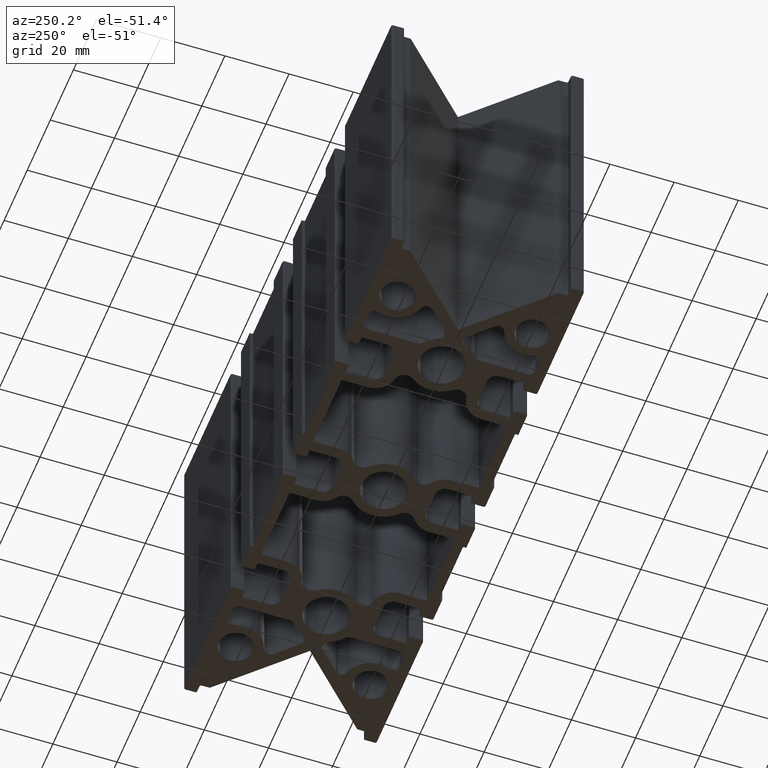
[diagram: clean part render]
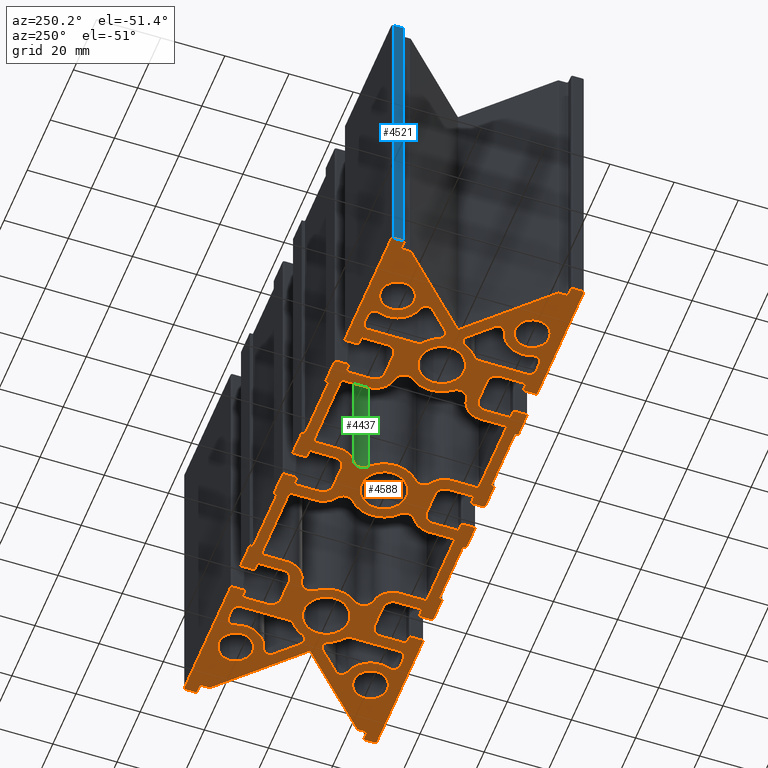
[diagram: same view with three faces highlighted in distinct colors, each labeled with its STEP entity id]
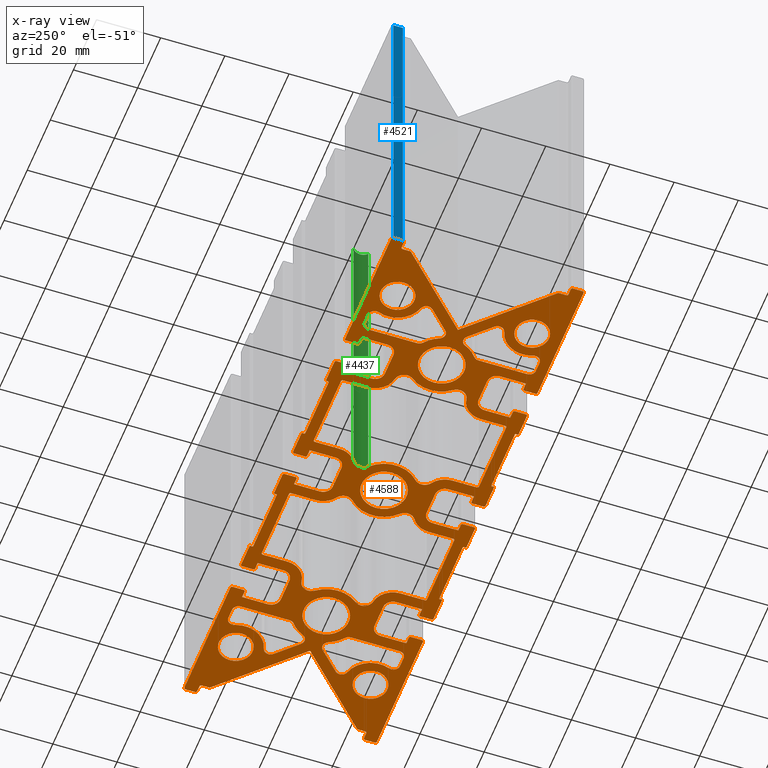
[diagram: x-ray of the same camera — body ghosted, the three highlighted faces saturated]
A machine part, auxiliary view with three faces highlighted in distinct colors.
The next image is the same camera in x-ray (body ghosted, the three faces saturated) — at least one of them is partly hidden behind the body in this view.
Their STEP definitions:

[orange] entity #4588 — the highlighted planar face has unit normal (0, 0, 1).
#35=FACE_BOUND('',#610,.T.);
#36=FACE_BOUND('',#611,.T.);
#37=FACE_BOUND('',#612,.T.);
#38=FACE_BOUND('',#613,.T.);
#39=FACE_BOUND('',#614,.T.);
#40=FACE_BOUND('',#615,.T.);
#41=FACE_BOUND('',#616,.T.);
#42=FACE_BOUND('',#617,.T.);
#43=FACE_BOUND('',#618,.T.);
#44=FACE_BOUND('',#619,.T.);
#45=FACE_BOUND('',#620,.T.);
#46=FACE_BOUND('',#621,.T.);
#47=FACE_BOUND('',#622,.T.);
#138=PLANE('',#5056);
#358=FACE_OUTER_BOUND('',#609,.T.);
#609=EDGE_LOOP('',(#3922,#3923,#3924,#3925,#3926,#3927,#3928,#3929,#3930,
#3931,#3932,#3933,#3934,#3935,#3936,#3937,#3938,#3939,#3940,#3941,#3942,
#3943,#3944,#3945,#3946,#3947,#3948,#3949,#3950,#3951,#3952,#3953,#3954,
#3955,#3956,#3957,#3958,#3959,#3960,#3961,#3962,#3963,#3964,#3965,#3966,
#3967,#3968,#3969,#3970,#3971,#3972,#3973,#3974,#3975,#3976,#3977,#3978,
#3979,#3980,#3981,#3982,#3983,#3984,#3985,#3986,#3987,#3988,#3989,#3990,
#3991,#3992,#3993,#3994,#3995,#3996,#3997,#3998,#3999,#4000,#4001,#4002,
#4003,#4004,#4005,#4006,#4007,#4008,#4009,#4010,#4011,#4012,#4013,#4014,
#4015,#4016,#4017,#4018,#4019,#4020,#4021,#4022,#4023,#4024,#4025,#4026,
#4027,#4028,#4029,#4030,#4031,#4032,#4033,#4034,#4035,#4036,#4037,#4038,
#4039,#4040,#4041,#4042,#4043,#4044,#4045,#4046,#4047,#4048,#4049,#4050,
#4051,#4052,#4053,#4054,#4055,#4056,#4057,#4058,#4059,#4060,#4061,#4062,
#4063));
#610=EDGE_LOOP('',(#4064,#4065,#4066,#4067,#4068,#4069,#4070,#4071,#4072,
#4073,#4074,#4075,#4076,#4077,#4078,#4079,#4080,#4081,#4082,#4083));
#611=EDGE_LOOP('',(#4084,#4085,#4086,#4087,#4088,#4089,#4090,#4091,#4092,
#4093));
#612=EDGE_LOOP('',(#4094,#4095,#4096,#4097,#4098,#4099,#4100,#4101,#4102,
#4103));
#613=EDGE_LOOP('',(#4104,#4105,#4106,#4107,#4108,#4109,#4110,#4111,#4112,
#4113,#4114,#4115,#4116,#4117,#4118,#4119,#4120,#4121,#4122,#4123));
#614=EDGE_LOOP('',(#4124,#4125,#4126,#4127,#4128,#4129,#4130,#4131,#4132,
#4133));
#615=EDGE_LOOP('',(#4134,#4135,#4136,#4137,#4138,#4139,#4140,#4141,#4142,
#4143));
#616=EDGE_LOOP('',(#4144));
#617=EDGE_LOOP('',(#4145));
#618=EDGE_LOOP('',(#4146));
#619=EDGE_LOOP('',(#4147));
#620=EDGE_LOOP('',(#4148));
#621=EDGE_LOOP('',(#4149));
#622=EDGE_LOOP('',(#4150));
#655=LINE('',#6510,#1089);
#661=LINE('',#6534,#1095);
#665=LINE('',#6545,#1099);
#670=LINE('',#6564,#1104);
#674=LINE('',#6576,#1108);
#678=LINE('',#6588,#1112);
#787=LINE('',#7040,#1221);
#792=LINE('',#7056,#1226);
#795=LINE('',#7063,#1229);
#799=LINE('',#7078,#1233);
#802=LINE('',#7086,#1236);
#805=LINE('',#7094,#1239);
#813=LINE('',#7122,#1247);
#818=LINE('',#7138,#1252);
#821=LINE('',#7145,#1255);
#825=LINE('',#7158,#1259);
#828=LINE('',#7166,#1262);
#831=LINE('',#7174,#1265);
#839=LINE('',#7200,#1273);
#844=LINE('',#7216,#1278);
#847=LINE('',#7223,#1281);
#851=LINE('',#7238,#1285);
#854=LINE('',#7246,#1288);
#857=LINE('',#7254,#1291);
#863=LINE('',#7295,#1297);
#867=LINE('',#7304,#1301);
#872=LINE('',#7319,#1306);
#875=LINE('',#7327,#1309);
#879=LINE('',#7337,#1313);
#882=LINE('',#7345,#1316);
#885=LINE('',#7353,#1319);
#890=LINE('',#7364,#1324);
#892=LINE('',#7373,#1326);
#896=LINE('',#7383,#1330);
#901=LINE('',#7394,#1335);
#904=LINE('',#7403,#1338);
#907=LINE('',#7410,#1341);
#908=LINE('',#7412,#1342);
#909=LINE('',#7414,#1343);
#910=LINE('',#7416,#1344);
#911=LINE('',#7418,#1345);
#913=LINE('',#7422,#1347);
#914=LINE('',#7424,#1348);
#916=LINE('',#7428,#1350);
#920=LINE('',#7438,#1354);
#923=LINE('',#7446,#1357);
#929=LINE('',#7462,#1363);
#932=LINE('',#7470,#1366);
#936=LINE('',#7480,#1370);
#939=LINE('',#7488,#1373);
#942=LINE('',#7496,#1376);
#945=LINE('',#7505,#1379);
#949=LINE('',#7516,#1383);
#953=LINE('',#7526,#1387);
#956=LINE('',#7535,#1390);
#961=LINE('',#7546,#1395);
#963=LINE('',#7552,#1397);
#964=LINE('',#7554,#1398);
#965=LINE('',#7556,#1399);
#966=LINE('',#7558,#1400);
#967=LINE('',#7560,#1401);
#968=LINE('',#7563,#1402);
#970=LINE('',#7566,#1404);
#971=LINE('',#7568,#1405);
#975=LINE('',#7578,#1409);
#978=LINE('',#7586,#1412);
#981=LINE('',#7594,#1415);
#985=LINE('',#7604,#1419);
#988=LINE('',#7612,#1422);
#992=LINE('',#7622,#1426);
#995=LINE('',#7630,#1429);
#998=LINE('',#7638,#1432);
#1001=LINE('',#7647,#1435);
#1005=LINE('',#7658,#1439);
#1009=LINE('',#7668,#1443);
#1012=LINE('',#7677,#1446);
#1017=LINE('',#7688,#1451);
#1019=LINE('',#7694,#1453);
#1020=LINE('',#7696,#1454);
#1021=LINE('',#7698,#1455);
#1022=LINE('',#7700,#1456);
#1023=LINE('',#7702,#1457);
#1024=LINE('',#7705,#1458);
#1026=LINE('',#7708,#1460);
#1027=LINE('',#7711,#1461);
#1031=LINE('',#7721,#1465);
#1035=LINE('',#7730,#1469);
#1038=LINE('',#7738,#1472);
#1041=LINE('',#7747,#1475);
#1043=LINE('',#7750,#1477);
#1044=LINE('',#7752,#1478);
#1045=LINE('',#7754,#1479);
#1046=LINE('',#7758,#1480);
#1047=LINE('',#7762,#1481);
#1048=LINE('',#7764,#1482);
#1049=LINE('',#7768,#1483);
#1050=LINE('',#7772,#1484);
#1051=LINE('',#7774,#1485);
#1052=LINE('',#7778,#1486);
#1053=LINE('',#7781,#1487);
#1054=LINE('',#7783,#1488);
#1055=LINE('',#7785,#1489);
#1056=LINE('',#7789,#1490);
#1057=LINE('',#7793,#1491);
#1058=LINE('',#7797,#1492);
#1059=LINE('',#7801,#1493);
#1089=VECTOR('',#5122,8.92704269656221);
#1095=VECTOR('',#5148,3.20464944616653);
#1099=VECTOR('',#5160,15.1877042505474);
#1104=VECTOR('',#5179,7.64999999999788);
#1108=VECTOR('',#5191,23.5);
#1112=VECTOR('',#5203,7.65000000005238);
#1221=VECTOR('',#5560,8.92704269656221);
#1226=VECTOR('',#5579,3.20464944616653);
#1229=VECTOR('',#5588,15.1877042505474);
#1233=VECTOR('',#5606,7.64999999999787);
#1236=VECTOR('',#5615,23.5);
#1239=VECTOR('',#5624,7.65000000005238);
#1247=VECTOR('',#5658,8.92704269656221);
#1252=VECTOR('',#5677,3.20464944616653);
#1255=VECTOR('',#5686,15.1877042505474);
#1259=VECTOR('',#5700,7.64999999999787);
#1262=VECTOR('',#5709,23.5);
#1265=VECTOR('',#5718,7.65000000005238);
#1273=VECTOR('',#5748,8.92704269656222);
#1278=VECTOR('',#5767,3.20464944616653);
#1281=VECTOR('',#5776,15.1877042505474);
#1285=VECTOR('',#5794,7.65000000005238);
#1288=VECTOR('',#5803,23.5);
#1291=VECTOR('',#5812,7.64999999999787);
#1297=VECTOR('',#5864,7.99999999999998);
#1301=VECTOR('',#5874,7.50000000000001);
#1306=VECTOR('',#5889,2.29289321881343);
#1309=VECTOR('',#5898,1.99999999999999);
#1313=VECTOR('',#5908,3.4);
#1316=VECTOR('',#5917,3.);
#1319=VECTOR('',#5926,39.9);
#1324=VECTOR('',#5937,3.4);
#1326=VECTOR('',#5949,7.49999999999999);
#1330=VECTOR('',#5959,2.14999999999999);
#1335=VECTOR('',#5970,7.49999999999999);
#1338=VECTOR('',#5979,20.3);
#1341=VECTOR('',#5988,0.749999999999997);
#1342=VECTOR('',#5991,8.);
#1343=VECTOR('',#5994,3.40000000000001);
#1344=VECTOR('',#5997,0.750000000000002);
#1345=VECTOR('',#6000,2.14999999999999);
#1347=VECTOR('',#6004,7.99999999999998);
#1348=VECTOR('',#6007,2.14999999999998);
#1350=VECTOR('',#6011,32.3198051533947);
#1354=VECTOR('',#6021,7.99999999999998);
#1357=VECTOR('',#6030,7.50000000000001);
#1363=VECTOR('',#6046,2.29289321881343);
#1366=VECTOR('',#6055,1.99999999999999);
#1370=VECTOR('',#6065,3.4);
#1373=VECTOR('',#6074,3.);
#1376=VECTOR('',#6083,39.9);
#1379=VECTOR('',#6092,3.4);
#1383=VECTOR('',#6106,7.49999999999999);
#1387=VECTOR('',#6116,2.14999999999999);
#1390=VECTOR('',#6125,7.49999999999999);
#1395=VECTOR('',#6136,20.3);
#1397=VECTOR('',#6144,0.749999999999997);
#1398=VECTOR('',#6147,8.);
#1399=VECTOR('',#6150,3.40000000000001);
#1400=VECTOR('',#6153,0.750000000000002);
#1401=VECTOR('',#6156,2.14999999999999);
#1402=VECTOR('',#6159,7.99999999999998);
#1404=VECTOR('',#6163,2.14999999999998);
#1405=VECTOR('',#6166,32.3198051533947);
#1409=VECTOR('',#6176,7.99999999999998);
#1412=VECTOR('',#6185,7.50000000000001);
#1415=VECTOR('',#6194,7.5);
#1419=VECTOR('',#6204,2.29289321881343);
#1422=VECTOR('',#6213,1.99999999999999);
#1426=VECTOR('',#6223,3.4);
#1429=VECTOR('',#6232,3.);
#1432=VECTOR('',#6241,39.9);
#1435=VECTOR('',#6250,3.4);
#1439=VECTOR('',#6264,7.49999999999999);
#1443=VECTOR('',#6274,2.14999999999999);
#1446=VECTOR('',#6283,7.49999999999999);
#1451=VECTOR('',#6294,20.3);
#1453=VECTOR('',#6302,0.749999999999997);
#1454=VECTOR('',#6305,8.);
#1455=VECTOR('',#6308,3.40000000000001);
#1456=VECTOR('',#6311,0.750000000000002);
#1457=VECTOR('',#6314,2.14999999999999);
#1458=VECTOR('',#6317,7.99999999999998);
#1460=VECTOR('',#6321,2.14999999999998);
#1461=VECTOR('',#6324,32.3198051533947);
#1465=VECTOR('',#6334,7.99999999999998);
#1469=VECTOR('',#6344,7.50000000000001);
#1472=VECTOR('',#6353,7.5);
#1475=VECTOR('',#6362,2.29289321881343);
#1477=VECTOR('',#6366,32.3198051533947);
#1478=VECTOR('',#6367,8.);
#1479=VECTOR('',#6368,2.14999999999999);
#1480=VECTOR('',#6371,3.40000000000001);
#1481=VECTOR('',#6374,7.49999999999999);
#1482=VECTOR('',#6375,0.749999999999997);
#1483=VECTOR('',#6378,20.3);
#1484=VECTOR('',#6381,0.750000000000002);
#1485=VECTOR('',#6382,7.49999999999999);
#1486=VECTOR('',#6385,3.4);
#1487=VECTOR('',#6388,2.14999999999999);
#1488=VECTOR('',#6389,7.99999999999998);
#1489=VECTOR('',#6390,2.14999999999998);
#1490=VECTOR('',#6393,3.4);
#1491=VECTOR('',#6396,39.9);
#1492=VECTOR('',#6399,3.);
#1493=VECTOR('',#6402,1.99999999999999);
#1519=CIRCLE('',#4620,2.00000000000002);
#1521=CIRCLE('',#4623,10.);
#1523=CIRCLE('',#4626,2.);
#1525=CIRCLE('',#4630,2.00000000000001);
#1527=CIRCLE('',#4633,8.26);
#1529=CIRCLE('',#4636,2.00000000000001);
#1531=CIRCLE('',#4640,2.00000000000001);
#1533=CIRCLE('',#4644,3.);
#1535=CIRCLE('',#4647,6.5);
#1537=CIRCLE('',#4651,0.5);
#1539=CIRCLE('',#4655,0.499999999999998);
#1541=CIRCLE('',#4659,6.5);
#1543=CIRCLE('',#4662,3.);
#1655=CIRCLE('',#4776,2.00000000000002);
#1656=CIRCLE('',#4778,10.);
#1657=CIRCLE('',#4780,2.);
#1658=CIRCLE('',#4783,2.00000000000001);
#1659=CIRCLE('',#4785,8.26);
#1660=CIRCLE('',#4787,2.00000000000001);
#1661=CIRCLE('',#4790,2.00000000000001);
#1662=CIRCLE('',#4793,10.);
#1663=CIRCLE('',#4795,3.);
#1664=CIRCLE('',#4797,6.5);
#1665=CIRCLE('',#4800,0.5);
#1666=CIRCLE('',#4803,0.499999999999998);
#1667=CIRCLE('',#4806,6.5);
#1668=CIRCLE('',#4808,3.);
#1669=CIRCLE('',#4810,10.);
#1670=CIRCLE('',#4812,2.00000000000002);
#1671=CIRCLE('',#4814,10.);
#1672=CIRCLE('',#4816,2.);
#1673=CIRCLE('',#4819,2.00000000000001);
#1674=CIRCLE('',#4821,8.26);
#1675=CIRCLE('',#4823,2.00000000000001);
#1676=CIRCLE('',#4826,2.00000000000001);
#1677=CIRCLE('',#4829,3.);
#1678=CIRCLE('',#4831,6.5);
#1679=CIRCLE('',#4834,0.5);
#1680=CIRCLE('',#4837,0.499999999999998);
#1681=CIRCLE('',#4840,6.5);
#1682=CIRCLE('',#4842,3.);
#1683=CIRCLE('',#4844,2.00000000000002);
#1684=CIRCLE('',#4846,10.);
#1685=CIRCLE('',#4848,2.);
#1686=CIRCLE('',#4851,2.00000000000001);
#1687=CIRCLE('',#4853,8.26);
#1688=CIRCLE('',#4855,2.00000000000001);
#1689=CIRCLE('',#4858,2.00000000000001);
#1690=CIRCLE('',#4861,10.);
#1691=CIRCLE('',#4863,3.);
#1692=CIRCLE('',#4865,6.5);
#1693=CIRCLE('',#4868,0.499999999999998);
#1694=CIRCLE('',#4871,0.5);
#1695=CIRCLE('',#4874,6.5);
#1696=CIRCLE('',#4876,3.);
#1697=CIRCLE('',#4878,10.);
#1698=CIRCLE('',#4880,5.26);
#1699=CIRCLE('',#4882,5.26);
#1700=CIRCLE('',#4884,5.26);
#1701=CIRCLE('',#4886,5.26);
#1702=CIRCLE('',#4888,7.);
#1703=CIRCLE('',#4890,7.);
#1704=CIRCLE('',#4892,7.);
#1705=CIRCLE('',#4894,3.);
#1706=CIRCLE('',#4897,3.);
#1707=CIRCLE('',#4900,3.);
#1708=CIRCLE('',#4902,0.5);
#1709=CIRCLE('',#4905,0.5);
#1710=CIRCLE('',#4908,0.5);
#1711=CIRCLE('',#4911,0.5);
#1712=CIRCLE('',#4914,0.5);
#1713=CIRCLE('',#4917,0.5);
#1714=CIRCLE('',#4920,0.5);
#1715=CIRCLE('',#4922,0.5);
#1716=CIRCLE('',#4925,0.5);
#1717=CIRCLE('',#4928,0.5);
#1718=CIRCLE('',#4931,0.25);
#1719=CIRCLE('',#4934,0.25);
#1720=CIRCLE('',#4944,3.);
#1721=CIRCLE('',#4947,3.);
#1722=CIRCLE('',#4950,3.);
#1723=CIRCLE('',#4952,0.5);
#1724=CIRCLE('',#4955,0.5);
#1725=CIRCLE('',#4958,0.5);
#1726=CIRCLE('',#4961,0.5);
#1727=CIRCLE('',#4964,0.5);
#1728=CIRCLE('',#4967,0.5);
#1729=CIRCLE('',#4970,0.5);
#1730=CIRCLE('',#4972,0.5);
#1731=CIRCLE('',#4975,0.5);
#1732=CIRCLE('',#4978,0.5);
#1733=CIRCLE('',#4981,0.25);
#1734=CIRCLE('',#4984,0.25);
#1735=CIRCLE('',#4994,3.);
#1736=CIRCLE('',#4997,3.);
#1737=CIRCLE('',#5000,3.);
#1738=CIRCLE('',#5003,0.5);
#1739=CIRCLE('',#5006,0.5);
#1740=CIRCLE('',#5009,0.5);
#1741=CIRCLE('',#5012,0.5);
#1742=CIRCLE('',#5015,0.5);
#1743=CIRCLE('',#5018,0.5);
#1744=CIRCLE('',#5021,0.5);
#1745=CIRCLE('',#5023,0.5);
#1746=CIRCLE('',#5026,0.5);
#1747=CIRCLE('',#5029,0.5);
#1748=CIRCLE('',#5032,0.25);
#1749=CIRCLE('',#5035,0.25);
#1750=CIRCLE('',#5045,3.);
#1751=CIRCLE('',#5048,3.);
#1752=CIRCLE('',#5051,3.);
#1753=CIRCLE('',#5054,0.5);
#1754=CIRCLE('',#5057,0.5);
#1755=CIRCLE('',#5058,0.5);
#1756=CIRCLE('',#5059,0.25);
#1757=CIRCLE('',#5060,0.25);
#1758=CIRCLE('',#5061,0.5);
#1759=CIRCLE('',#5062,0.5);
#1760=CIRCLE('',#5063,0.5);
#1761=CIRCLE('',#5064,0.5);
#1762=CIRCLE('',#5065,0.5);
#1763=CIRCLE('',#5066,0.5);
#1764=CIRCLE('',#5067,0.5);
#1765=VERTEX_POINT('',#6488);
#1766=VERTEX_POINT('',#6489);
#1769=VERTEX_POINT('',#6497);
#1771=VERTEX_POINT('',#6503);
#1773=VERTEX_POINT('',#6509);
#1775=VERTEX_POINT('',#6515);
#1777=VERTEX_POINT('',#6521);
#1779=VERTEX_POINT('',#6527);
#1781=VERTEX_POINT('',#6533);
#1783=VERTEX_POINT('',#6539);
#1785=VERTEX_POINT('',#6548);
#1786=VERTEX_POINT('',#6549);
#1789=VERTEX_POINT('',#6557);
#1791=VERTEX_POINT('',#6563);
#1793=VERTEX_POINT('',#6569);
#1795=VERTEX_POINT('',#6575);
#1797=VERTEX_POINT('',#6581);
#1799=VERTEX_POINT('',#6587);
#1801=VERTEX_POINT('',#6593);
#1803=VERTEX_POINT('',#6599);
#2014=VERTEX_POINT('',#7025);
#2015=VERTEX_POINT('',#7026);
#2016=VERTEX_POINT('',#7031);
#2017=VERTEX_POINT('',#7035);
#2018=VERTEX_POINT('',#7039);
#2019=VERTEX_POINT('',#7043);
#2020=VERTEX_POINT('',#7047);
#2021=VERTEX_POINT('',#7051);
#2022=VERTEX_POINT('',#7055);
#2023=VERTEX_POINT('',#7059);
#2024=VERTEX_POINT('',#7065);
#2025=VERTEX_POINT('',#7069);
#2026=VERTEX_POINT('',#7073);
#2027=VERTEX_POINT('',#7077);
#2028=VERTEX_POINT('',#7081);
#2029=VERTEX_POINT('',#7085);
#2030=VERTEX_POINT('',#7089);
#2031=VERTEX_POINT('',#7093);
#2032=VERTEX_POINT('',#7097);
#2033=VERTEX_POINT('',#7101);
#2034=VERTEX_POINT('',#7107);
#2035=VERTEX_POINT('',#7108);
#2036=VERTEX_POINT('',#7113);
#2037=VERTEX_POINT('',#7117);
#2038=VERTEX_POINT('',#7121);
#2039=VERTEX_POINT('',#7125);
#2040=VERTEX_POINT('',#7129);
#2041=VERTEX_POINT('',#7133);
#2042=VERTEX_POINT('',#7137);
#2043=VERTEX_POINT('',#7141);
#2044=VERTEX_POINT('',#7147);
#2045=VERTEX_POINT('',#7148);
#2046=VERTEX_POINT('',#7153);
#2047=VERTEX_POINT('',#7157);
#2048=VERTEX_POINT('',#7161);
#2049=VERTEX_POINT('',#7165);
#2050=VERTEX_POINT('',#7169);
#2051=VERTEX_POINT('',#7173);
#2052=VERTEX_POINT('',#7177);
#2053=VERTEX_POINT('',#7181);
#2054=VERTEX_POINT('',#7185);
#2055=VERTEX_POINT('',#7186);
#2056=VERTEX_POINT('',#7191);
#2057=VERTEX_POINT('',#7195);
#2058=VERTEX_POINT('',#7199);
#2059=VERTEX_POINT('',#7203);
#2060=VERTEX_POINT('',#7207);
#2061=VERTEX_POINT('',#7211);
#2062=VERTEX_POINT('',#7215);
#2063=VERTEX_POINT('',#7219);
#2064=VERTEX_POINT('',#7225);
#2065=VERTEX_POINT('',#7229);
#2066=VERTEX_POINT('',#7233);
#2067=VERTEX_POINT('',#7237);
#2068=VERTEX_POINT('',#7241);
#2069=VERTEX_POINT('',#7245);
#2070=VERTEX_POINT('',#7249);
#2071=VERTEX_POINT('',#7253);
#2072=VERTEX_POINT('',#7257);
#2073=VERTEX_POINT('',#7261);
#2074=VERTEX_POINT('',#7267);
#2075=VERTEX_POINT('',#7270);
#2076=VERTEX_POINT('',#7273);
#2077=VERTEX_POINT('',#7276);
#2078=VERTEX_POINT('',#7279);
#2079=VERTEX_POINT('',#7282);
#2080=VERTEX_POINT('',#7285);
#2081=VERTEX_POINT('',#7288);
#2082=VERTEX_POINT('',#7289);
#2083=VERTEX_POINT('',#7294);
#2084=VERTEX_POINT('',#7298);
#2085=VERTEX_POINT('',#7299);
#2086=VERTEX_POINT('',#7306);
#2087=VERTEX_POINT('',#7307);
#2088=VERTEX_POINT('',#7312);
#2089=VERTEX_POINT('',#7314);
#2090=VERTEX_POINT('',#7318);
#2091=VERTEX_POINT('',#7322);
#2092=VERTEX_POINT('',#7326);
#2093=VERTEX_POINT('',#7330);
#2094=VERTEX_POINT('',#7332);
#2095=VERTEX_POINT('',#7336);
#2096=VERTEX_POINT('',#7340);
#2097=VERTEX_POINT('',#7344);
#2098=VERTEX_POINT('',#7348);
#2099=VERTEX_POINT('',#7352);
#2100=VERTEX_POINT('',#7356);
#2101=VERTEX_POINT('',#7358);
#2102=VERTEX_POINT('',#7362);
#2103=VERTEX_POINT('',#7368);
#2104=VERTEX_POINT('',#7372);
#2105=VERTEX_POINT('',#7376);
#2106=VERTEX_POINT('',#7378);
#2107=VERTEX_POINT('',#7382);
#2108=VERTEX_POINT('',#7386);
#2109=VERTEX_POINT('',#7388);
#2110=VERTEX_POINT('',#7392);
#2111=VERTEX_POINT('',#7396);
#2112=VERTEX_POINT('',#7397);
#2113=VERTEX_POINT('',#7402);
#2114=VERTEX_POINT('',#7406);
#2115=VERTEX_POINT('',#7420);
#2116=VERTEX_POINT('',#7426);
#2117=VERTEX_POINT('',#7430);
#2118=VERTEX_POINT('',#7431);
#2119=VERTEX_POINT('',#7436);
#2120=VERTEX_POINT('',#7440);
#2121=VERTEX_POINT('',#7441);
#2122=VERTEX_POINT('',#7448);
#2123=VERTEX_POINT('',#7449);
#2124=VERTEX_POINT('',#7454);
#2125=VERTEX_POINT('',#7456);
#2126=VERTEX_POINT('',#7460);
#2127=VERTEX_POINT('',#7464);
#2128=VERTEX_POINT('',#7468);
#2129=VERTEX_POINT('',#7472);
#2130=VERTEX_POINT('',#7474);
#2131=VERTEX_POINT('',#7478);
#2132=VERTEX_POINT('',#7482);
#2133=VERTEX_POINT('',#7486);
#2134=VERTEX_POINT('',#7490);
#2135=VERTEX_POINT('',#7494);
#2136=VERTEX_POINT('',#7498);
#2137=VERTEX_POINT('',#7500);
#2138=VERTEX_POINT('',#7504);
#2139=VERTEX_POINT('',#7510);
#2140=VERTEX_POINT('',#7514);
#2141=VERTEX_POINT('',#7518);
#2142=VERTEX_POINT('',#7520);
#2143=VERTEX_POINT('',#7524);
#2144=VERTEX_POINT('',#7528);
#2145=VERTEX_POINT('',#7530);
#2146=VERTEX_POINT('',#7534);
#2147=VERTEX_POINT('',#7538);
#2148=VERTEX_POINT('',#7539);
#2149=VERTEX_POINT('',#7544);
#2150=VERTEX_POINT('',#7548);
#2151=VERTEX_POINT('',#7562);
#2152=VERTEX_POINT('',#7570);
#2153=VERTEX_POINT('',#7571);
#2154=VERTEX_POINT('',#7576);
#2155=VERTEX_POINT('',#7580);
#2156=VERTEX_POINT('',#7581);
#2157=VERTEX_POINT('',#7588);
#2158=VERTEX_POINT('',#7589);
#2159=VERTEX_POINT('',#7596);
#2160=VERTEX_POINT('',#7598);
#2161=VERTEX_POINT('',#7602);
#2162=VERTEX_POINT('',#7606);
#2163=VERTEX_POINT('',#7610);
#2164=VERTEX_POINT('',#7614);
#2165=VERTEX_POINT('',#7616);
#2166=VERTEX_POINT('',#7620);
#2167=VERTEX_POINT('',#7624);
#2168=VERTEX_POINT('',#7628);
#2169=VERTEX_POINT('',#7632);
#2170=VERTEX_POINT('',#7636);
#2171=VERTEX_POINT('',#7640);
#2172=VERTEX_POINT('',#7642);
#2173=VERTEX_POINT('',#7646);
#2174=VERTEX_POINT('',#7652);
#2175=VERTEX_POINT('',#7656);
#2176=VERTEX_POINT('',#7660);
#2177=VERTEX_POINT('',#7662);
#2178=VERTEX_POINT('',#7666);
#2179=VERTEX_POINT('',#7670);
#2180=VERTEX_POINT('',#7672);
#2181=VERTEX_POINT('',#7676);
#2182=VERTEX_POINT('',#7680);
#2183=VERTEX_POINT('',#7681);
#2184=VERTEX_POINT('',#7686);
#2185=VERTEX_POINT('',#7690);
#2186=VERTEX_POINT('',#7704);
#2187=VERTEX_POINT('',#7710);
#2188=VERTEX_POINT('',#7714);
#2189=VERTEX_POINT('',#7715);
#2190=VERTEX_POINT('',#7720);
#2191=VERTEX_POINT('',#7724);
#2192=VERTEX_POINT('',#7725);
#2193=VERTEX_POINT('',#7732);
#2194=VERTEX_POINT('',#7733);
#2195=VERTEX_POINT('',#7740);
#2196=VERTEX_POINT('',#7742);
#2197=VERTEX_POINT('',#7746);
#2198=VERTEX_POINT('',#7751);
#2199=VERTEX_POINT('',#7753);
#2200=VERTEX_POINT('',#7755);
#2201=VERTEX_POINT('',#7757);
#2202=VERTEX_POINT('',#7759);
#2203=VERTEX_POINT('',#7761);
#2204=VERTEX_POINT('',#7763);
#2205=VERTEX_POINT('',#7765);
#2206=VERTEX_POINT('',#7767);
#2207=VERTEX_POINT('',#7769);
#2208=VERTEX_POINT('',#7771);
#2209=VERTEX_POINT('',#7773);
#2210=VERTEX_POINT('',#7775);
#2211=VERTEX_POINT('',#7777);
#2212=VERTEX_POINT('',#7779);
#2213=VERTEX_POINT('',#7782);
#2214=VERTEX_POINT('',#7784);
#2215=VERTEX_POINT('',#7786);
#2216=VERTEX_POINT('',#7788);
#2217=VERTEX_POINT('',#7790);
#2218=VERTEX_POINT('',#7792);
#2219=VERTEX_POINT('',#7794);
#2220=VERTEX_POINT('',#7796);
#2221=VERTEX_POINT('',#7798);
#2222=VERTEX_POINT('',#7800);
#2223=EDGE_CURVE('',#1765,#1766,#1519,.T.);
#2227=EDGE_CURVE('',#1766,#1769,#1521,.T.);
#2230=EDGE_CURVE('',#1769,#1771,#1523,.T.);
#2233=EDGE_CURVE('',#1771,#1773,#655,.T.);
#2236=EDGE_CURVE('',#1773,#1775,#1525,.T.);
#2239=EDGE_CURVE('',#1775,#1777,#1527,.T.);
#2242=EDGE_CURVE('',#1777,#1779,#1529,.T.);
#2245=EDGE_CURVE('',#1779,#1781,#661,.T.);
#2248=EDGE_CURVE('',#1781,#1783,#1531,.T.);
#2251=EDGE_CURVE('',#1783,#1765,#665,.T.);
#2253=EDGE_CURVE('',#1785,#1786,#1533,.T.);
#2257=EDGE_CURVE('',#1789,#1785,#1535,.T.);
#2260=EDGE_CURVE('',#1791,#1789,#670,.T.);
#2263=EDGE_CURVE('',#1793,#1791,#1537,.T.);
#2266=EDGE_CURVE('',#1795,#1793,#674,.T.);
#2269=EDGE_CURVE('',#1797,#1795,#1539,.T.);
#2272=EDGE_CURVE('',#1799,#1797,#678,.T.);
#2275=EDGE_CURVE('',#1801,#1799,#1541,.T.);
#2278=EDGE_CURVE('',#1803,#1801,#1543,.T.);
#2491=EDGE_CURVE('',#2014,#2015,#1655,.T.);
#2494=EDGE_CURVE('',#2016,#2014,#1656,.T.);
#2496=EDGE_CURVE('',#2017,#2016,#1657,.T.);
#2498=EDGE_CURVE('',#2018,#2017,#787,.T.);
#2500=EDGE_CURVE('',#2019,#2018,#1658,.T.);
#2502=EDGE_CURVE('',#2020,#2019,#1659,.T.);
#2504=EDGE_CURVE('',#2021,#2020,#1660,.T.);
#2506=EDGE_CURVE('',#2022,#2021,#792,.T.);
#2508=EDGE_CURVE('',#2023,#2022,#1661,.T.);
#2510=EDGE_CURVE('',#2015,#2023,#795,.T.);
#2511=EDGE_CURVE('',#1786,#2024,#1662,.T.);
#2513=EDGE_CURVE('',#2024,#2025,#1663,.T.);
#2515=EDGE_CURVE('',#2025,#2026,#1664,.T.);
#2517=EDGE_CURVE('',#2026,#2027,#799,.T.);
#2519=EDGE_CURVE('',#2027,#2028,#1665,.T.);
#2521=EDGE_CURVE('',#2028,#2029,#802,.T.);
#2523=EDGE_CURVE('',#2029,#2030,#1666,.T.);
#2525=EDGE_CURVE('',#2030,#2031,#805,.T.);
#2527=EDGE_CURVE('',#2031,#2032,#1667,.T.);
#2529=EDGE_CURVE('',#2032,#2033,#1668,.T.);
#2531=EDGE_CURVE('',#2033,#1803,#1669,.T.);
#2532=EDGE_CURVE('',#2034,#2035,#1670,.T.);
#2535=EDGE_CURVE('',#2036,#2034,#1671,.T.);
#2537=EDGE_CURVE('',#2037,#2036,#1672,.T.);
#2539=EDGE_CURVE('',#2038,#2037,#813,.T.);
#2541=EDGE_CURVE('',#2039,#2038,#1673,.T.);
#2543=EDGE_CURVE('',#2040,#2039,#1674,.T.);
#2545=EDGE_CURVE('',#2041,#2040,#1675,.T.);
#2547=EDGE_CURVE('',#2042,#2041,#818,.T.);
#2549=EDGE_CURVE('',#2043,#2042,#1676,.T.);
#2551=EDGE_CURVE('',#2035,#2043,#821,.T.);
#2552=EDGE_CURVE('',#2044,#2045,#1677,.T.);
#2555=EDGE_CURVE('',#2045,#2046,#1678,.T.);
#2557=EDGE_CURVE('',#2046,#2047,#825,.T.);
#2559=EDGE_CURVE('',#2047,#2048,#1679,.T.);
#2561=EDGE_CURVE('',#2048,#2049,#828,.T.);
#2563=EDGE_CURVE('',#2049,#2050,#1680,.T.);
#2565=EDGE_CURVE('',#2050,#2051,#831,.T.);
#2567=EDGE_CURVE('',#2051,#2052,#1681,.T.);
#2569=EDGE_CURVE('',#2052,#2053,#1682,.T.);
#2571=EDGE_CURVE('',#2054,#2055,#1683,.T.);
#2574=EDGE_CURVE('',#2055,#2056,#1684,.T.);
#2576=EDGE_CURVE('',#2056,#2057,#1685,.T.);
#2578=EDGE_CURVE('',#2057,#2058,#839,.T.);
#2580=EDGE_CURVE('',#2058,#2059,#1686,.T.);
#2582=EDGE_CURVE('',#2059,#2060,#1687,.T.);
#2584=EDGE_CURVE('',#2060,#2061,#1688,.T.);
#2586=EDGE_CURVE('',#2061,#2062,#844,.T.);
#2588=EDGE_CURVE('',#2062,#2063,#1689,.T.);
#2590=EDGE_CURVE('',#2063,#2054,#847,.T.);
#2591=EDGE_CURVE('',#2053,#2064,#1690,.T.);
#2593=EDGE_CURVE('',#2064,#2065,#1691,.T.);
#2595=EDGE_CURVE('',#2065,#2066,#1692,.T.);
#2597=EDGE_CURVE('',#2066,#2067,#851,.T.);
#2599=EDGE_CURVE('',#2067,#2068,#1693,.T.);
#2601=EDGE_CURVE('',#2068,#2069,#854,.T.);
#2603=EDGE_CURVE('',#2069,#2070,#1694,.T.);
#2605=EDGE_CURVE('',#2070,#2071,#857,.T.);
#2607=EDGE_CURVE('',#2071,#2072,#1695,.T.);
#2609=EDGE_CURVE('',#2072,#2073,#1696,.T.);
#2611=EDGE_CURVE('',#2073,#2044,#1697,.T.);
#2612=EDGE_CURVE('',#2074,#2074,#1698,.T.);
#2613=EDGE_CURVE('',#2075,#2075,#1699,.T.);
#2614=EDGE_CURVE('',#2076,#2076,#1700,.T.);
#2615=EDGE_CURVE('',#2077,#2077,#1701,.T.);
#2616=EDGE_CURVE('',#2078,#2078,#1702,.T.);
#2617=EDGE_CURVE('',#2079,#2079,#1703,.T.);
#2618=EDGE_CURVE('',#2080,#2080,#1704,.T.);
#2619=EDGE_CURVE('',#2081,#2082,#1705,.T.);
#2622=EDGE_CURVE('',#2082,#2083,#863,.T.);
#2624=EDGE_CURVE('',#2084,#2085,#1706,.T.);
#2627=EDGE_CURVE('',#2085,#2081,#867,.T.);
#2628=EDGE_CURVE('',#2086,#2087,#1707,.T.);
#2632=EDGE_CURVE('',#2088,#2089,#1708,.T.);
#2634=EDGE_CURVE('',#2089,#2090,#872,.T.);
#2636=EDGE_CURVE('',#2090,#2091,#1709,.T.);
#2638=EDGE_CURVE('',#2091,#2092,#875,.T.);
#2641=EDGE_CURVE('',#2093,#2094,#1710,.T.);
#2643=EDGE_CURVE('',#2094,#2095,#879,.T.);
#2645=EDGE_CURVE('',#2092,#2096,#1711,.T.);
#2647=EDGE_CURVE('',#2096,#2097,#882,.T.);
#2649=EDGE_CURVE('',#2097,#2098,#1712,.T.);
#2651=EDGE_CURVE('',#2098,#2099,#885,.T.);
#2654=EDGE_CURVE('',#2100,#2101,#1713,.T.);
#2657=EDGE_CURVE('',#2102,#2100,#890,.T.);
#2658=EDGE_CURVE('',#2099,#2102,#1714,.T.);
#2659=EDGE_CURVE('',#2095,#2103,#1715,.T.);
#2661=EDGE_CURVE('',#2103,#2104,#892,.T.);
#2664=EDGE_CURVE('',#2105,#2106,#1716,.T.);
#2666=EDGE_CURVE('',#2106,#2107,#896,.T.);
#2669=EDGE_CURVE('',#2108,#2109,#1717,.T.);
#2672=EDGE_CURVE('',#2110,#2108,#901,.T.);
#2673=EDGE_CURVE('',#2111,#2112,#1718,.T.);
#2676=EDGE_CURVE('',#2112,#2113,#904,.T.);
#2678=EDGE_CURVE('',#2113,#2114,#1719,.T.);
#2680=EDGE_CURVE('',#2114,#2110,#907,.T.);
#2681=EDGE_CURVE('',#2107,#2086,#908,.T.);
#2682=EDGE_CURVE('',#2109,#2105,#909,.T.);
#2683=EDGE_CURVE('',#2104,#2111,#910,.T.);
#2684=EDGE_CURVE('',#2083,#2093,#911,.T.);
#2686=EDGE_CURVE('',#2115,#2084,#913,.T.);
#2687=EDGE_CURVE('',#2101,#2115,#914,.T.);
#2689=EDGE_CURVE('',#2116,#2088,#916,.T.);
#2690=EDGE_CURVE('',#2117,#2118,#1720,.T.);
#2694=EDGE_CURVE('',#2118,#2119,#920,.T.);
#2695=EDGE_CURVE('',#2120,#2121,#1721,.T.);
#2698=EDGE_CURVE('',#2121,#2117,#923,.T.);
#2699=EDGE_CURVE('',#2122,#2123,#1722,.T.);
#2703=EDGE_CURVE('',#2125,#2124,#1723,.T.);
#2706=EDGE_CURVE('',#2124,#2126,#929,.T.);
#2707=EDGE_CURVE('',#2126,#2127,#1724,.T.);
#2710=EDGE_CURVE('',#2127,#2128,#932,.T.);
#2712=EDGE_CURVE('',#2130,#2129,#1725,.T.);
#2715=EDGE_CURVE('',#2129,#2131,#936,.T.);
#2717=EDGE_CURVE('',#2128,#2132,#1726,.T.);
#2719=EDGE_CURVE('',#2132,#2133,#939,.T.);
#2721=EDGE_CURVE('',#2133,#2134,#1727,.T.);
#2723=EDGE_CURVE('',#2134,#2135,#942,.T.);
#2725=EDGE_CURVE('',#2137,#2136,#1728,.T.);
#2727=EDGE_CURVE('',#2138,#2137,#945,.T.);
#2729=EDGE_CURVE('',#2135,#2138,#1729,.T.);
#2731=EDGE_CURVE('',#2131,#2139,#1730,.T.);
#2733=EDGE_CURVE('',#2139,#2140,#949,.T.);
#2735=EDGE_CURVE('',#2142,#2141,#1731,.T.);
#2738=EDGE_CURVE('',#2141,#2143,#953,.T.);
#2740=EDGE_CURVE('',#2145,#2144,#1732,.T.);
#2742=EDGE_CURVE('',#2146,#2145,#956,.T.);
#2744=EDGE_CURVE('',#2147,#2148,#1733,.T.);
#2748=EDGE_CURVE('',#2148,#2149,#961,.T.);
#2749=EDGE_CURVE('',#2149,#2150,#1734,.T.);
#2751=EDGE_CURVE('',#2150,#2146,#963,.T.);
#2752=EDGE_CURVE('',#2143,#2122,#964,.T.);
#2753=EDGE_CURVE('',#2144,#2142,#965,.T.);
#2754=EDGE_CURVE('',#2140,#2147,#966,.T.);
#2755=EDGE_CURVE('',#2119,#2130,#967,.T.);
#2756=EDGE_CURVE('',#2151,#2120,#968,.T.);
#2758=EDGE_CURVE('',#2136,#2151,#970,.T.);
#2759=EDGE_CURVE('',#2116,#2125,#971,.T.);
#2760=EDGE_CURVE('',#2152,#2153,#1735,.T.);
#2764=EDGE_CURVE('',#2153,#2154,#975,.T.);
#2765=EDGE_CURVE('',#2155,#2156,#1736,.T.);
#2768=EDGE_CURVE('',#2156,#2152,#978,.T.);
#2769=EDGE_CURVE('',#2157,#2158,#1737,.T.);
#2772=EDGE_CURVE('',#2158,#2087,#981,.T.);
#2774=EDGE_CURVE('',#2160,#2159,#1738,.T.);
#2777=EDGE_CURVE('',#2159,#2161,#985,.T.);
#2778=EDGE_CURVE('',#2161,#2162,#1739,.T.);
#2781=EDGE_CURVE('',#2162,#2163,#988,.T.);
#2783=EDGE_CURVE('',#2165,#2164,#1740,.T.);
#2786=EDGE_CURVE('',#2164,#2166,#992,.T.);
#2788=EDGE_CURVE('',#2163,#2167,#1741,.T.);
#2790=EDGE_CURVE('',#2167,#2168,#995,.T.);
#2792=EDGE_CURVE('',#2168,#2169,#1742,.T.);
#2794=EDGE_CURVE('',#2169,#2170,#998,.T.);
#2796=EDGE_CURVE('',#2172,#2171,#1743,.T.);
#2798=EDGE_CURVE('',#2173,#2172,#1001,.T.);
#2800=EDGE_CURVE('',#2170,#2173,#1744,.T.);
#2802=EDGE_CURVE('',#2166,#2174,#1745,.T.);
#2804=EDGE_CURVE('',#2174,#2175,#1005,.T.);
#2806=EDGE_CURVE('',#2177,#2176,#1746,.T.);
#2809=EDGE_CURVE('',#2176,#2178,#1009,.T.);
#2811=EDGE_CURVE('',#2180,#2179,#1747,.T.);
#2813=EDGE_CURVE('',#2181,#2180,#1012,.T.);
#2815=EDGE_CURVE('',#2182,#2183,#1748,.T.);
#2819=EDGE_CURVE('',#2183,#2184,#1017,.T.);
#2820=EDGE_CURVE('',#2184,#2185,#1749,.T.);
#2822=EDGE_CURVE('',#2185,#2181,#1019,.T.);
#2823=EDGE_CURVE('',#2178,#2157,#1020,.T.);
#2824=EDGE_CURVE('',#2179,#2177,#1021,.T.);
#2825=EDGE_CURVE('',#2175,#2182,#1022,.T.);
#2826=EDGE_CURVE('',#2154,#2165,#1023,.T.);
#2827=EDGE_CURVE('',#2186,#2155,#1024,.T.);
#2829=EDGE_CURVE('',#2171,#2186,#1026,.T.);
#2830=EDGE_CURVE('',#2187,#2160,#1027,.T.);
#2832=EDGE_CURVE('',#2188,#2189,#1750,.T.);
#2835=EDGE_CURVE('',#2189,#2190,#1031,.T.);
#2837=EDGE_CURVE('',#2191,#2192,#1751,.T.);
#2840=EDGE_CURVE('',#2192,#2188,#1035,.T.);
#2841=EDGE_CURVE('',#2193,#2194,#1752,.T.);
#2844=EDGE_CURVE('',#2194,#2123,#1038,.T.);
#2846=EDGE_CURVE('',#2195,#2196,#1753,.T.);
#2848=EDGE_CURVE('',#2196,#2197,#1041,.T.);
#2850=EDGE_CURVE('',#2187,#2195,#1043,.T.);
#2851=EDGE_CURVE('',#2198,#2193,#1044,.T.);
#2852=EDGE_CURVE('',#2199,#2198,#1045,.T.);
#2853=EDGE_CURVE('',#2200,#2199,#1754,.T.);
#2854=EDGE_CURVE('',#2201,#2200,#1046,.T.);
#2855=EDGE_CURVE('',#2202,#2201,#1755,.T.);
#2856=EDGE_CURVE('',#2203,#2202,#1047,.T.);
#2857=EDGE_CURVE('',#2204,#2203,#1048,.T.);
#2858=EDGE_CURVE('',#2205,#2204,#1756,.T.);
#2859=EDGE_CURVE('',#2206,#2205,#1049,.T.);
#2860=EDGE_CURVE('',#2207,#2206,#1757,.T.);
#2861=EDGE_CURVE('',#2208,#2207,#1050,.T.);
#2862=EDGE_CURVE('',#2209,#2208,#1051,.T.);
#2863=EDGE_CURVE('',#2210,#2209,#1758,.T.);
#2864=EDGE_CURVE('',#2211,#2210,#1052,.T.);
#2865=EDGE_CURVE('',#2212,#2211,#1759,.T.);
#2866=EDGE_CURVE('',#2190,#2212,#1053,.T.);
#2867=EDGE_CURVE('',#2213,#2191,#1054,.T.);
#2868=EDGE_CURVE('',#2214,#2213,#1055,.T.);
#2869=EDGE_CURVE('',#2215,#2214,#1760,.T.);
#2870=EDGE_CURVE('',#2216,#2215,#1056,.T.);
#2871=EDGE_CURVE('',#2217,#2216,#1761,.T.);
#2872=EDGE_CURVE('',#2218,#2217,#1057,.T.);
#2873=EDGE_CURVE('',#2219,#2218,#1762,.T.);
#2874=EDGE_CURVE('',#2220,#2219,#1058,.T.);
#2875=EDGE_CURVE('',#2221,#2220,#1763,.T.);
#2876=EDGE_CURVE('',#2222,#2221,#1059,.T.);
#2877=EDGE_CURVE('',#2197,#2222,#1764,.T.);
#3922=ORIENTED_EDGE('',*,*,#2846,.F.);
#3923=ORIENTED_EDGE('',*,*,#2850,.F.);
#3924=ORIENTED_EDGE('',*,*,#2830,.T.);
#3925=ORIENTED_EDGE('',*,*,#2774,.T.);
#3926=ORIENTED_EDGE('',*,*,#2777,.T.);
#3927=ORIENTED_EDGE('',*,*,#2778,.T.);
#3928=ORIENTED_EDGE('',*,*,#2781,.T.);
#3929=ORIENTED_EDGE('',*,*,#2788,.T.);
#3930=ORIENTED_EDGE('',*,*,#2790,.T.);
#3931=ORIENTED_EDGE('',*,*,#2792,.T.);
#3932=ORIENTED_EDGE('',*,*,#2794,.T.);
#3933=ORIENTED_EDGE('',*,*,#2800,.T.);
#3934=ORIENTED_EDGE('',*,*,#2798,.T.);
#3935=ORIENTED_EDGE('',*,*,#2796,.T.);
#3936=ORIENTED_EDGE('',*,*,#2829,.T.);
#3937=ORIENTED_EDGE('',*,*,#2827,.T.);
#3938=ORIENTED_EDGE('',*,*,#2765,.T.);
#3939=ORIENTED_EDGE('',*,*,#2768,.T.);
#3940=ORIENTED_EDGE('',*,*,#2760,.T.);
#3941=ORIENTED_EDGE('',*,*,#2764,.T.);
#3942=ORIENTED_EDGE('',*,*,#2826,.T.);
#3943=ORIENTED_EDGE('',*,*,#2783,.T.);
#3944=ORIENTED_EDGE('',*,*,#2786,.T.);
#3945=ORIENTED_EDGE('',*,*,#2802,.T.);
#3946=ORIENTED_EDGE('',*,*,#2804,.T.);
#3947=ORIENTED_EDGE('',*,*,#2825,.T.);
#3948=ORIENTED_EDGE('',*,*,#2815,.T.);
#3949=ORIENTED_EDGE('',*,*,#2819,.T.);
#3950=ORIENTED_EDGE('',*,*,#2820,.T.);
#3951=ORIENTED_EDGE('',*,*,#2822,.T.);
#3952=ORIENTED_EDGE('',*,*,#2813,.T.);
#3953=ORIENTED_EDGE('',*,*,#2811,.T.);
#3954=ORIENTED_EDGE('',*,*,#2824,.T.);
#3955=ORIENTED_EDGE('',*,*,#2806,.T.);
#3956=ORIENTED_EDGE('',*,*,#2809,.T.);
#3957=ORIENTED_EDGE('',*,*,#2823,.T.);
#3958=ORIENTED_EDGE('',*,*,#2769,.T.);
#3959=ORIENTED_EDGE('',*,*,#2772,.T.);
#3960=ORIENTED_EDGE('',*,*,#2628,.F.);
#3961=ORIENTED_EDGE('',*,*,#2681,.F.);
#3962=ORIENTED_EDGE('',*,*,#2666,.F.);
#3963=ORIENTED_EDGE('',*,*,#2664,.F.);
#3964=ORIENTED_EDGE('',*,*,#2682,.F.);
#3965=ORIENTED_EDGE('',*,*,#2669,.F.);
#3966=ORIENTED_EDGE('',*,*,#2672,.F.);
#3967=ORIENTED_EDGE('',*,*,#2680,.F.);
#3968=ORIENTED_EDGE('',*,*,#2678,.F.);
#3969=ORIENTED_EDGE('',*,*,#2676,.F.);
#3970=ORIENTED_EDGE('',*,*,#2673,.F.);
#3971=ORIENTED_EDGE('',*,*,#2683,.F.);
#3972=ORIENTED_EDGE('',*,*,#2661,.F.);
#3973=ORIENTED_EDGE('',*,*,#2659,.F.);
#3974=ORIENTED_EDGE('',*,*,#2643,.F.);
#3975=ORIENTED_EDGE('',*,*,#2641,.F.);
#3976=ORIENTED_EDGE('',*,*,#2684,.F.);
#3977=ORIENTED_EDGE('',*,*,#2622,.F.);
#3978=ORIENTED_EDGE('',*,*,#2619,.F.);
#3979=ORIENTED_EDGE('',*,*,#2627,.F.);
#3980=ORIENTED_EDGE('',*,*,#2624,.F.);
#3981=ORIENTED_EDGE('',*,*,#2686,.F.);
#3982=ORIENTED_EDGE('',*,*,#2687,.F.);
#3983=ORIENTED_EDGE('',*,*,#2654,.F.);
#3984=ORIENTED_EDGE('',*,*,#2657,.F.);
#3985=ORIENTED_EDGE('',*,*,#2658,.F.);
#3986=ORIENTED_EDGE('',*,*,#2651,.F.);
#3987=ORIENTED_EDGE('',*,*,#2649,.F.);
#3988=ORIENTED_EDGE('',*,*,#2647,.F.);
#3989=ORIENTED_EDGE('',*,*,#2645,.F.);
#3990=ORIENTED_EDGE('',*,*,#2638,.F.);
#3991=ORIENTED_EDGE('',*,*,#2636,.F.);
#3992=ORIENTED_EDGE('',*,*,#2634,.F.);
#3993=ORIENTED_EDGE('',*,*,#2632,.F.);
#3994=ORIENTED_EDGE('',*,*,#2689,.F.);
#3995=ORIENTED_EDGE('',*,*,#2759,.T.);
#3996=ORIENTED_EDGE('',*,*,#2703,.T.);
#3997=ORIENTED_EDGE('',*,*,#2706,.T.);
#3998=ORIENTED_EDGE('',*,*,#2707,.T.);
#3999=ORIENTED_EDGE('',*,*,#2710,.T.);
#4000=ORIENTED_EDGE('',*,*,#2717,.T.);
#4001=ORIENTED_EDGE('',*,*,#2719,.T.);
#4002=ORIENTED_EDGE('',*,*,#2721,.T.);
#4003=ORIENTED_EDGE('',*,*,#2723,.T.);
#4004=ORIENTED_EDGE('',*,*,#2729,.T.);
#4005=ORIENTED_EDGE('',*,*,#2727,.T.);
#4006=ORIENTED_EDGE('',*,*,#2725,.T.);
#4007=ORIENTED_EDGE('',*,*,#2758,.T.);
#4008=ORIENTED_EDGE('',*,*,#2756,.T.);
#4009=ORIENTED_EDGE('',*,*,#2695,.T.);
#4010=ORIENTED_EDGE('',*,*,#2698,.T.);
#4011=ORIENTED_EDGE('',*,*,#2690,.T.);
#4012=ORIENTED_EDGE('',*,*,#2694,.T.);
#4013=ORIENTED_EDGE('',*,*,#2755,.T.);
#4014=ORIENTED_EDGE('',*,*,#2712,.T.);
#4015=ORIENTED_EDGE('',*,*,#2715,.T.);
#4016=ORIENTED_EDGE('',*,*,#2731,.T.);
#4017=ORIENTED_EDGE('',*,*,#2733,.T.);
#4018=ORIENTED_EDGE('',*,*,#2754,.T.);
#4019=ORIENTED_EDGE('',*,*,#2744,.T.);
#4020=ORIENTED_EDGE('',*,*,#2748,.T.);
#4021=ORIENTED_EDGE('',*,*,#2749,.T.);
#4022=ORIENTED_EDGE('',*,*,#2751,.T.);
#4023=ORIENTED_EDGE('',*,*,#2742,.T.);
#4024=ORIENTED_EDGE('',*,*,#2740,.T.);
#4025=ORIENTED_EDGE('',*,*,#2753,.T.);
#4026=ORIENTED_EDGE('',*,*,#2735,.T.);
#4027=ORIENTED_EDGE('',*,*,#2738,.T.);
#4028=ORIENTED_EDGE('',*,*,#2752,.T.);
#4029=ORIENTED_EDGE('',*,*,#2699,.T.);
#4030=ORIENTED_EDGE('',*,*,#2844,.F.);
#4031=ORIENTED_EDGE('',*,*,#2841,.F.);
#4032=ORIENTED_EDGE('',*,*,#2851,.F.);
#4033=ORIENTED_EDGE('',*,*,#2852,.F.);
#4034=ORIENTED_EDGE('',*,*,#2853,.F.);
#4035=ORIENTED_EDGE('',*,*,#2854,.F.);
#4036=ORIENTED_EDGE('',*,*,#2855,.F.);
#4037=ORIENTED_EDGE('',*,*,#2856,.F.);
#4038=ORIENTED_EDGE('',*,*,#2857,.F.);
#4039=ORIENTED_EDGE('',*,*,#2858,.F.);
#4040=ORIENTED_EDGE('',*,*,#2859,.F.);
#4041=ORIENTED_EDGE('',*,*,#2860,.F.);
#4042=ORIENTED_EDGE('',*,*,#2861,.F.);
#4043=ORIENTED_EDGE('',*,*,#2862,.F.);
#4044=ORIENTED_EDGE('',*,*,#2863,.F.);
#4045=ORIENTED_EDGE('',*,*,#2864,.F.);
#4046=ORIENTED_EDGE('',*,*,#2865,.F.);
#4047=ORIENTED_EDGE('',*,*,#2866,.F.);
#4048=ORIENTED_EDGE('',*,*,#2835,.F.);
#4049=ORIENTED_EDGE('',*,*,#2832,.F.);
#4050=ORIENTED_EDGE('',*,*,#2840,.F.);
#4051=ORIENTED_EDGE('',*,*,#2837,.F.);
#4052=ORIENTED_EDGE('',*,*,#2867,.F.);
#4053=ORIENTED_EDGE('',*,*,#2868,.F.);
#4054=ORIENTED_EDGE('',*,*,#2869,.F.);
#4055=ORIENTED_EDGE('',*,*,#2870,.F.);
#4056=ORIENTED_EDGE('',*,*,#2871,.F.);
#4057=ORIENTED_EDGE('',*,*,#2872,.F.);
#4058=ORIENTED_EDGE('',*,*,#2873,.F.);
#4059=ORIENTED_EDGE('',*,*,#2874,.F.);
#4060=ORIENTED_EDGE('',*,*,#2875,.F.);
#4061=ORIENTED_EDGE('',*,*,#2876,.F.);
#4062=ORIENTED_EDGE('',*,*,#2877,.F.);
#4063=ORIENTED_EDGE('',*,*,#2848,.F.);
#4064=ORIENTED_EDGE('',*,*,#2511,.T.);
#4065=ORIENTED_EDGE('',*,*,#2513,.T.);
#4066=ORIENTED_EDGE('',*,*,#2515,.T.);
#4067=ORIENTED_EDGE('',*,*,#2517,.T.);
#4068=ORIENTED_EDGE('',*,*,#2519,.T.);
#4069=ORIENTED_EDGE('',*,*,#2521,.T.);
#4070=ORIENTED_EDGE('',*,*,#2523,.T.);
#4071=ORIENTED_EDGE('',*,*,#2525,.T.);
#4072=ORIENTED_EDGE('',*,*,#2527,.T.);
#4073=ORIENTED_EDGE('',*,*,#2529,.T.);
#4074=ORIENTED_EDGE('',*,*,#2531,.T.);
#4075=ORIENTED_EDGE('',*,*,#2278,.T.);
#4076=ORIENTED_EDGE('',*,*,#2275,.T.);
#4077=ORIENTED_EDGE('',*,*,#2272,.T.);
#4078=ORIENTED_EDGE('',*,*,#2269,.T.);
#4079=ORIENTED_EDGE('',*,*,#2266,.T.);
#4080=ORIENTED_EDGE('',*,*,#2263,.T.);
#4081=ORIENTED_EDGE('',*,*,#2260,.T.);
#4082=ORIENTED_EDGE('',*,*,#2257,.T.);
#4083=ORIENTED_EDGE('',*,*,#2253,.T.);
#4084=ORIENTED_EDGE('',*,*,#2223,.T.);
#4085=ORIENTED_EDGE('',*,*,#2227,.T.);
#4086=ORIENTED_EDGE('',*,*,#2230,.T.);
#4087=ORIENTED_EDGE('',*,*,#2233,.T.);
#4088=ORIENTED_EDGE('',*,*,#2236,.T.);
#4089=ORIENTED_EDGE('',*,*,#2239,.T.);
#4090=ORIENTED_EDGE('',*,*,#2242,.T.);
#4091=ORIENTED_EDGE('',*,*,#2245,.T.);
#4092=ORIENTED_EDGE('',*,*,#2248,.T.);
#4093=ORIENTED_EDGE('',*,*,#2251,.T.);
#4094=ORIENTED_EDGE('',*,*,#2491,.T.);
#4095=ORIENTED_EDGE('',*,*,#2510,.T.);
#4096=ORIENTED_EDGE('',*,*,#2508,.T.);
#4097=ORIENTED_EDGE('',*,*,#2506,.T.);
#4098=ORIENTED_EDGE('',*,*,#2504,.T.);
#4099=ORIENTED_EDGE('',*,*,#2502,.T.);
#4100=ORIENTED_EDGE('',*,*,#2500,.T.);
#4101=ORIENTED_EDGE('',*,*,#2498,.T.);
#4102=ORIENTED_EDGE('',*,*,#2496,.T.);
#4103=ORIENTED_EDGE('',*,*,#2494,.T.);
#4104=ORIENTED_EDGE('',*,*,#2591,.T.);
#4105=ORIENTED_EDGE('',*,*,#2593,.T.);
#4106=ORIENTED_EDGE('',*,*,#2595,.T.);
#4107=ORIENTED_EDGE('',*,*,#2597,.T.);
#4108=ORIENTED_EDGE('',*,*,#2599,.T.);
#4109=ORIENTED_EDGE('',*,*,#2601,.T.);
#4110=ORIENTED_EDGE('',*,*,#2603,.T.);
#4111=ORIENTED_EDGE('',*,*,#2605,.T.);
#4112=ORIENTED_EDGE('',*,*,#2607,.T.);
#4113=ORIENTED_EDGE('',*,*,#2609,.T.);
#4114=ORIENTED_EDGE('',*,*,#2611,.T.);
#4115=ORIENTED_EDGE('',*,*,#2552,.T.);
#4116=ORIENTED_EDGE('',*,*,#2555,.T.);
#4117=ORIENTED_EDGE('',*,*,#2557,.T.);
#4118=ORIENTED_EDGE('',*,*,#2559,.T.);
#4119=ORIENTED_EDGE('',*,*,#2561,.T.);
#4120=ORIENTED_EDGE('',*,*,#2563,.T.);
#4121=ORIENTED_EDGE('',*,*,#2565,.T.);
#4122=ORIENTED_EDGE('',*,*,#2567,.T.);
#4123=ORIENTED_EDGE('',*,*,#2569,.T.);
#4124=ORIENTED_EDGE('',*,*,#2532,.T.);
#4125=ORIENTED_EDGE('',*,*,#2551,.T.);
#4126=ORIENTED_EDGE('',*,*,#2549,.T.);
#4127=ORIENTED_EDGE('',*,*,#2547,.T.);
#4128=ORIENTED_EDGE('',*,*,#2545,.T.);
#4129=ORIENTED_EDGE('',*,*,#2543,.T.);
#4130=ORIENTED_EDGE('',*,*,#2541,.T.);
#4131=ORIENTED_EDGE('',*,*,#2539,.T.);
#4132=ORIENTED_EDGE('',*,*,#2537,.T.);
#4133=ORIENTED_EDGE('',*,*,#2535,.T.);
#4134=ORIENTED_EDGE('',*,*,#2582,.T.);
#4135=ORIENTED_EDGE('',*,*,#2584,.T.);
#4136=ORIENTED_EDGE('',*,*,#2586,.T.);
#4137=ORIENTED_EDGE('',*,*,#2588,.T.);
#4138=ORIENTED_EDGE('',*,*,#2590,.T.);
#4139=ORIENTED_EDGE('',*,*,#2571,.T.);
#4140=ORIENTED_EDGE('',*,*,#2574,.T.);
#4141=ORIENTED_EDGE('',*,*,#2576,.T.);
#4142=ORIENTED_EDGE('',*,*,#2578,.T.);
#4143=ORIENTED_EDGE('',*,*,#2580,.T.);
#4144=ORIENTED_EDGE('',*,*,#2612,.T.);
#4145=ORIENTED_EDGE('',*,*,#2613,.T.);
#4146=ORIENTED_EDGE('',*,*,#2614,.T.);
#4147=ORIENTED_EDGE('',*,*,#2615,.T.);
#4148=ORIENTED_EDGE('',*,*,#2616,.T.);
#4149=ORIENTED_EDGE('',*,*,#2617,.T.);
#4150=ORIENTED_EDGE('',*,*,#2618,.T.);
#4588=ADVANCED_FACE('',(#358,#35,#36,#37,#38,#39,#40,#41,#42,#43,#44,#45,
#46,#47),#138,.F.);
#4620=AXIS2_PLACEMENT_3D('',#6490,#5100,#5101);
#4623=AXIS2_PLACEMENT_3D('',#6498,#5108,#5109);
#4626=AXIS2_PLACEMENT_3D('',#6504,#5115,#5116);
#4630=AXIS2_PLACEMENT_3D('',#6516,#5127,#5128);
#4633=AXIS2_PLACEMENT_3D('',#6522,#5134,#5135);
#4636=AXIS2_PLACEMENT_3D('',#6528,#5141,#5142);
#4640=AXIS2_PLACEMENT_3D('',#6540,#5153,#5154);
#4644=AXIS2_PLACEMENT_3D('',#6550,#5164,#5165);
#4647=AXIS2_PLACEMENT_3D('',#6558,#5172,#5173);
#4651=AXIS2_PLACEMENT_3D('',#6570,#5184,#5185);
#4655=AXIS2_PLACEMENT_3D('',#6582,#5196,#5197);
#4659=AXIS2_PLACEMENT_3D('',#6594,#5208,#5209);
#4662=AXIS2_PLACEMENT_3D('',#6600,#5215,#5216);
#4776=AXIS2_PLACEMENT_3D('',#7027,#5544,#5545);
#4778=AXIS2_PLACEMENT_3D('',#7032,#5550,#5551);
#4780=AXIS2_PLACEMENT_3D('',#7036,#5555,#5556);
#4783=AXIS2_PLACEMENT_3D('',#7044,#5564,#5565);
#4785=AXIS2_PLACEMENT_3D('',#7048,#5569,#5570);
#4787=AXIS2_PLACEMENT_3D('',#7052,#5574,#5575);
#4790=AXIS2_PLACEMENT_3D('',#7060,#5583,#5584);
#4793=AXIS2_PLACEMENT_3D('',#7066,#5591,#5592);
#4795=AXIS2_PLACEMENT_3D('',#7070,#5596,#5597);
#4797=AXIS2_PLACEMENT_3D('',#7074,#5601,#5602);
#4800=AXIS2_PLACEMENT_3D('',#7082,#5610,#5611);
#4803=AXIS2_PLACEMENT_3D('',#7090,#5619,#5620);
#4806=AXIS2_PLACEMENT_3D('',#7098,#5628,#5629);
#4808=AXIS2_PLACEMENT_3D('',#7102,#5633,#5634);
#4810=AXIS2_PLACEMENT_3D('',#7105,#5638,#5639);
#4812=AXIS2_PLACEMENT_3D('',#7109,#5642,#5643);
#4814=AXIS2_PLACEMENT_3D('',#7114,#5648,#5649);
#4816=AXIS2_PLACEMENT_3D('',#7118,#5653,#5654);
#4819=AXIS2_PLACEMENT_3D('',#7126,#5662,#5663);
#4821=AXIS2_PLACEMENT_3D('',#7130,#5667,#5668);
#4823=AXIS2_PLACEMENT_3D('',#7134,#5672,#5673);
#4826=AXIS2_PLACEMENT_3D('',#7142,#5681,#5682);
#4829=AXIS2_PLACEMENT_3D('',#7149,#5689,#5690);
#4831=AXIS2_PLACEMENT_3D('',#7154,#5695,#5696);
#4834=AXIS2_PLACEMENT_3D('',#7162,#5704,#5705);
#4837=AXIS2_PLACEMENT_3D('',#7170,#5713,#5714);
#4840=AXIS2_PLACEMENT_3D('',#7178,#5722,#5723);
#4842=AXIS2_PLACEMENT_3D('',#7182,#5727,#5728);
#4844=AXIS2_PLACEMENT_3D('',#7187,#5732,#5733);
#4846=AXIS2_PLACEMENT_3D('',#7192,#5738,#5739);
#4848=AXIS2_PLACEMENT_3D('',#7196,#5743,#5744);
#4851=AXIS2_PLACEMENT_3D('',#7204,#5752,#5753);
#4853=AXIS2_PLACEMENT_3D('',#7208,#5757,#5758);
#4855=AXIS2_PLACEMENT_3D('',#7212,#5762,#5763);
#4858=AXIS2_PLACEMENT_3D('',#7220,#5771,#5772);
#4861=AXIS2_PLACEMENT_3D('',#7226,#5779,#5780);
#4863=AXIS2_PLACEMENT_3D('',#7230,#5784,#5785);
#4865=AXIS2_PLACEMENT_3D('',#7234,#5789,#5790);
#4868=AXIS2_PLACEMENT_3D('',#7242,#5798,#5799);
#4871=AXIS2_PLACEMENT_3D('',#7250,#5807,#5808);
#4874=AXIS2_PLACEMENT_3D('',#7258,#5816,#5817);
#4876=AXIS2_PLACEMENT_3D('',#7262,#5821,#5822);
#4878=AXIS2_PLACEMENT_3D('',#7265,#5826,#5827);
#4880=AXIS2_PLACEMENT_3D('',#7268,#5830,#5831);
#4882=AXIS2_PLACEMENT_3D('',#7271,#5834,#5835);
#4884=AXIS2_PLACEMENT_3D('',#7274,#5838,#5839);
#4886=AXIS2_PLACEMENT_3D('',#7277,#5842,#5843);
#4888=AXIS2_PLACEMENT_3D('',#7280,#5846,#5847);
#4890=AXIS2_PLACEMENT_3D('',#7283,#5850,#5851);
#4892=AXIS2_PLACEMENT_3D('',#7286,#5854,#5855);
#4894=AXIS2_PLACEMENT_3D('',#7290,#5858,#5859);
#4897=AXIS2_PLACEMENT_3D('',#7300,#5868,#5869);
#4900=AXIS2_PLACEMENT_3D('',#7308,#5877,#5878);
#4902=AXIS2_PLACEMENT_3D('',#7315,#5884,#5885);
#4905=AXIS2_PLACEMENT_3D('',#7323,#5893,#5894);
#4908=AXIS2_PLACEMENT_3D('',#7333,#5903,#5904);
#4911=AXIS2_PLACEMENT_3D('',#7341,#5912,#5913);
#4914=AXIS2_PLACEMENT_3D('',#7349,#5921,#5922);
#4917=AXIS2_PLACEMENT_3D('',#7359,#5931,#5932);
#4920=AXIS2_PLACEMENT_3D('',#7366,#5940,#5941);
#4922=AXIS2_PLACEMENT_3D('',#7369,#5944,#5945);
#4925=AXIS2_PLACEMENT_3D('',#7379,#5954,#5955);
#4928=AXIS2_PLACEMENT_3D('',#7389,#5964,#5965);
#4931=AXIS2_PLACEMENT_3D('',#7398,#5973,#5974);
#4934=AXIS2_PLACEMENT_3D('',#7407,#5983,#5984);
#4944=AXIS2_PLACEMENT_3D('',#7432,#6014,#6015);
#4947=AXIS2_PLACEMENT_3D('',#7442,#6024,#6025);
#4950=AXIS2_PLACEMENT_3D('',#7450,#6033,#6034);
#4952=AXIS2_PLACEMENT_3D('',#7457,#6040,#6041);
#4955=AXIS2_PLACEMENT_3D('',#7465,#6049,#6050);
#4958=AXIS2_PLACEMENT_3D('',#7475,#6059,#6060);
#4961=AXIS2_PLACEMENT_3D('',#7484,#6069,#6070);
#4964=AXIS2_PLACEMENT_3D('',#7492,#6078,#6079);
#4967=AXIS2_PLACEMENT_3D('',#7501,#6087,#6088);
#4970=AXIS2_PLACEMENT_3D('',#7508,#6096,#6097);
#4972=AXIS2_PLACEMENT_3D('',#7512,#6101,#6102);
#4975=AXIS2_PLACEMENT_3D('',#7521,#6110,#6111);
#4978=AXIS2_PLACEMENT_3D('',#7531,#6120,#6121);
#4981=AXIS2_PLACEMENT_3D('',#7540,#6129,#6130);
#4984=AXIS2_PLACEMENT_3D('',#7549,#6139,#6140);
#4994=AXIS2_PLACEMENT_3D('',#7572,#6169,#6170);
#4997=AXIS2_PLACEMENT_3D('',#7582,#6179,#6180);
#5000=AXIS2_PLACEMENT_3D('',#7590,#6188,#6189);
#5003=AXIS2_PLACEMENT_3D('',#7599,#6198,#6199);
#5006=AXIS2_PLACEMENT_3D('',#7607,#6207,#6208);
#5009=AXIS2_PLACEMENT_3D('',#7617,#6217,#6218);
#5012=AXIS2_PLACEMENT_3D('',#7626,#6227,#6228);
#5015=AXIS2_PLACEMENT_3D('',#7634,#6236,#6237);
#5018=AXIS2_PLACEMENT_3D('',#7643,#6245,#6246);
#5021=AXIS2_PLACEMENT_3D('',#7650,#6254,#6255);
#5023=AXIS2_PLACEMENT_3D('',#7654,#6259,#6260);
#5026=AXIS2_PLACEMENT_3D('',#7663,#6268,#6269);
#5029=AXIS2_PLACEMENT_3D('',#7673,#6278,#6279);
#5032=AXIS2_PLACEMENT_3D('',#7682,#6287,#6288);
#5035=AXIS2_PLACEMENT_3D('',#7691,#6297,#6298);
#5045=AXIS2_PLACEMENT_3D('',#7716,#6328,#6329);
#5048=AXIS2_PLACEMENT_3D('',#7726,#6338,#6339);
#5051=AXIS2_PLACEMENT_3D('',#7734,#6347,#6348);
#5054=AXIS2_PLACEMENT_3D('',#7743,#6357,#6358);
#5056=AXIS2_PLACEMENT_3D('',#7749,#6364,#6365);
#5057=AXIS2_PLACEMENT_3D('',#7756,#6369,#6370);
#5058=AXIS2_PLACEMENT_3D('',#7760,#6372,#6373);
#5059=AXIS2_PLACEMENT_3D('',#7766,#6376,#6377);
#5060=AXIS2_PLACEMENT_3D('',#7770,#6379,#6380);
#5061=AXIS2_PLACEMENT_3D('',#7776,#6383,#6384);
#5062=AXIS2_PLACEMENT_3D('',#7780,#6386,#6387);
#5063=AXIS2_PLACEMENT_3D('',#7787,#6391,#6392);
#5064=AXIS2_PLACEMENT_3D('',#7791,#6394,#6395);
#5065=AXIS2_PLACEMENT_3D('',#7795,#6397,#6398);
#5066=AXIS2_PLACEMENT_3D('',#7799,#6400,#6401);
#5067=AXIS2_PLACEMENT_3D('',#7802,#6403,#6404);
#5100=DIRECTION('center_axis',(0.,0.,1.));
#5101=DIRECTION('ref_axis',(-1.,-7.4183083918135E-15,0.));
#5108=DIRECTION('center_axis',(0.,0.,-1.));
#5109=DIRECTION('ref_axis',(-0.917112932385452,-0.398627481806457,0.));
#5115=DIRECTION('center_axis',(0.,0.,1.));
#5116=DIRECTION('ref_axis',(-0.917112932385451,-0.398627481806459,0.));
#5122=DIRECTION('',(0.707106781186544,0.707106781186551,0.));
#5127=DIRECTION('center_axis',(0.,0.,1.));
#5128=DIRECTION('ref_axis',(0.70710678118655,-0.707106781186545,0.));
#5134=DIRECTION('center_axis',(0.,0.,-1.));
#5135=DIRECTION('ref_axis',(0.930735921426267,-0.365692007797269,0.));
#5141=DIRECTION('center_axis',(0.,0.,1.));
#5142=DIRECTION('ref_axis',(0.930735921426267,-0.36569200779727,0.));
#5148=DIRECTION('',(-1.,-3.8080701113746E-15,0.));
#5153=DIRECTION('center_axis',(0.,0.,1.));
#5154=DIRECTION('ref_axis',(-2.42230478100034E-15,1.,0.));
#5160=DIRECTION('',(3.59190672352976E-15,-1.,0.));
#5164=DIRECTION('center_axis',(0.,0.,1.));
#5165=DIRECTION('ref_axis',(0.532617404941604,-0.846356130688064,0.));
#5172=DIRECTION('center_axis',(0.,0.,-1.));
#5173=DIRECTION('ref_axis',(0.532617404941604,-0.846356130688064,0.));
#5179=DIRECTION('',(3.87357670861533E-15,-1.,0.));
#5184=DIRECTION('center_axis',(0.,0.,1.));
#5185=DIRECTION('ref_axis',(2.42230478100034E-15,-1.,0.));
#5191=DIRECTION('',(-1.,-2.61127891285143E-15,0.));
#5196=DIRECTION('center_axis',(0.,0.,1.));
#5197=DIRECTION('ref_axis',(-1.,-2.42230478100034E-15,0.));
#5203=DIRECTION('',(-1.26128723891662E-15,1.,0.));
#5208=DIRECTION('center_axis',(0.,0.,-1.));
#5209=DIRECTION('ref_axis',(-1.,-8.38785140800368E-12,0.));
#5215=DIRECTION('center_axis',(0.,0.,1.));
#5216=DIRECTION('ref_axis',(-0.77627068126935,0.630399737786763,0.));
#5544=DIRECTION('center_axis',(0.,0.,1.));
#5545=DIRECTION('ref_axis',(-1.,2.57369882981281E-15,0.));
#5550=DIRECTION('center_axis',(0.,0.,-1.));
#5551=DIRECTION('ref_axis',(-0.917112932385454,0.398627481806452,0.));
#5555=DIRECTION('center_axis',(0.,0.,1.));
#5556=DIRECTION('ref_axis',(-0.917112932385453,0.398627481806455,0.));
#5560=DIRECTION('',(-0.707106781186548,0.707106781186547,0.));
#5564=DIRECTION('center_axis',(0.,0.,1.));
#5565=DIRECTION('ref_axis',(0.707106781186547,0.707106781186548,0.));
#5569=DIRECTION('center_axis',(0.,0.,-1.));
#5570=DIRECTION('ref_axis',(0.930735921426265,0.365692007797274,0.));
#5574=DIRECTION('center_axis',(0.,0.,1.));
#5575=DIRECTION('ref_axis',(0.930735921426265,0.365692007797274,0.));
#5579=DIRECTION('',(1.,1.03653945062609E-15,0.));
#5583=DIRECTION('center_axis',(0.,0.,1.));
#5584=DIRECTION('ref_axis',(2.42230478100034E-15,-1.,0.));
#5588=DIRECTION('',(1.25270283847092E-15,-1.,0.));
#5591=DIRECTION('center_axis',(0.,0.,-1.));
#5592=DIRECTION('ref_axis',(1.,3.6296723202802E-15,0.));
#5596=DIRECTION('center_axis',(0.,0.,1.));
#5597=DIRECTION('ref_axis',(0.5326174049416,0.846356130688066,0.));
#5601=DIRECTION('center_axis',(0.,0.,-1.));
#5602=DIRECTION('ref_axis',(0.5326174049416,0.846356130688067,0.));
#5606=DIRECTION('',(9.71032853385354E-16,-1.,0.));
#5610=DIRECTION('center_axis',(0.,0.,1.));
#5611=DIRECTION('ref_axis',(-2.42230478100034E-15,1.,0.));
#5615=DIRECTION('',(1.,2.23333064914925E-15,0.));
#5619=DIRECTION('center_axis',(0.,0.,1.));
#5620=DIRECTION('ref_axis',(-1.,-2.42230478100034E-15,0.));
#5624=DIRECTION('',(-3.58332232308406E-15,1.,0.));
#5628=DIRECTION('center_axis',(0.,0.,-1.));
#5629=DIRECTION('ref_axis',(-1.,8.38300679844168E-12,0.));
#5633=DIRECTION('center_axis',(0.,0.,1.));
#5634=DIRECTION('ref_axis',(-0.776270681269347,-0.630399737786767,0.));
#5638=DIRECTION('center_axis',(0.,0.,-1.));
#5639=DIRECTION('ref_axis',(-0.77627068126935,0.630399737786763,0.));
#5642=DIRECTION('center_axis',(0.,0.,1.));
#5643=DIRECTION('ref_axis',(1.,-4.99600361081316E-15,0.));
#5648=DIRECTION('center_axis',(0.,0.,-1.));
#5649=DIRECTION('ref_axis',(0.917112932385453,-0.398627481806455,0.));
#5653=DIRECTION('center_axis',(0.,0.,1.));
#5654=DIRECTION('ref_axis',(0.917112932385452,-0.398627481806457,0.));
#5658=DIRECTION('',(0.707106781186546,-0.707106781186549,0.));
#5662=DIRECTION('center_axis',(0.,0.,1.));
#5663=DIRECTION('ref_axis',(-0.707106781186549,-0.707106781186546,0.));
#5667=DIRECTION('center_axis',(0.,0.,-1.));
#5668=DIRECTION('ref_axis',(-0.930735921426266,-0.365692007797271,0.));
#5672=DIRECTION('center_axis',(0.,0.,1.));
#5673=DIRECTION('ref_axis',(-0.930735921426266,-0.365692007797272,0.));
#5677=DIRECTION('',(-1.,1.38576533037425E-15,0.));
#5681=DIRECTION('center_axis',(0.,0.,1.));
#5682=DIRECTION('ref_axis',(0.,1.,0.));
#5686=DIRECTION('',(1.16960194252942E-15,1.,0.));
#5689=DIRECTION('center_axis',(0.,0.,1.));
#5690=DIRECTION('ref_axis',(-0.532617404941602,-0.846356130688065,0.));
#5695=DIRECTION('center_axis',(0.,0.,-1.));
#5696=DIRECTION('ref_axis',(-0.532617404941602,-0.846356130688065,0.));
#5700=DIRECTION('',(1.45127192761499E-15,1.,0.));
#5704=DIRECTION('center_axis',(0.,0.,1.));
#5705=DIRECTION('ref_axis',(0.,-1.,0.));
#5709=DIRECTION('',(-1.,1.8897413185109E-16,0.));
#5713=DIRECTION('center_axis',(0.,0.,1.));
#5714=DIRECTION('ref_axis',(1.,0.,0.));
#5718=DIRECTION('',(1.16101754208372E-15,-1.,0.));
#5722=DIRECTION('center_axis',(0.,0.,-1.));
#5723=DIRECTION('ref_axis',(1.,-8.38542910322268E-12,0.));
#5727=DIRECTION('center_axis',(0.,0.,1.));
#5728=DIRECTION('ref_axis',(0.776270681269348,0.630399737786765,0.));
#5732=DIRECTION('center_axis',(0.,0.,1.));
#5733=DIRECTION('ref_axis',(1.,4.99600361081316E-15,0.));
#5738=DIRECTION('center_axis',(0.,0.,-1.));
#5739=DIRECTION('ref_axis',(0.917112932385453,0.398627481806455,0.));
#5743=DIRECTION('center_axis',(0.,0.,1.));
#5744=DIRECTION('ref_axis',(0.917112932385452,0.398627481806457,0.));
#5748=DIRECTION('',(-0.707106781186546,-0.707106781186549,0.));
#5752=DIRECTION('center_axis',(0.,0.,1.));
#5753=DIRECTION('ref_axis',(-0.707106781186549,0.707106781186546,0.));
#5757=DIRECTION('center_axis',(0.,0.,-1.));
#5758=DIRECTION('ref_axis',(-0.930735921426266,0.365692007797271,0.));
#5762=DIRECTION('center_axis',(0.,0.,1.));
#5763=DIRECTION('ref_axis',(-0.930735921426266,0.365692007797272,0.));
#5767=DIRECTION('',(1.,1.38576533037425E-15,0.));
#5771=DIRECTION('center_axis',(0.,0.,1.));
#5772=DIRECTION('ref_axis',(0.,-1.,0.));
#5776=DIRECTION('',(-1.16960194252942E-15,1.,0.));
#5779=DIRECTION('center_axis',(0.,0.,-1.));
#5780=DIRECTION('ref_axis',(0.776270681269348,0.630399737786765,0.));
#5784=DIRECTION('center_axis',(0.,0.,1.));
#5785=DIRECTION('ref_axis',(0.776270681269348,-0.630399737786765,0.));
#5789=DIRECTION('center_axis',(0.,0.,-1.));
#5790=DIRECTION('ref_axis',(1.,8.38542910322268E-12,0.));
#5794=DIRECTION('',(-1.16101754208372E-15,-1.,0.));
#5798=DIRECTION('center_axis',(0.,0.,1.));
#5799=DIRECTION('ref_axis',(1.,0.,0.));
#5803=DIRECTION('',(1.,1.8897413185109E-16,0.));
#5807=DIRECTION('center_axis',(0.,0.,1.));
#5808=DIRECTION('ref_axis',(0.,1.,0.));
#5812=DIRECTION('',(-1.45127192761499E-15,1.,0.));
#5816=DIRECTION('center_axis',(0.,0.,-1.));
#5817=DIRECTION('ref_axis',(-0.532617404941602,0.846356130688065,0.));
#5821=DIRECTION('center_axis',(0.,0.,1.));
#5822=DIRECTION('ref_axis',(-0.532617404941602,0.846356130688065,0.));
#5826=DIRECTION('center_axis',(0.,0.,-1.));
#5827=DIRECTION('ref_axis',(-1.,-1.20736753927986E-15,0.));
#5830=DIRECTION('center_axis',(0.,0.,1.));
#5831=DIRECTION('ref_axis',(1.,0.,0.));
#5834=DIRECTION('center_axis',(0.,0.,1.));
#5835=DIRECTION('ref_axis',(1.,0.,0.));
#5838=DIRECTION('center_axis',(0.,0.,1.));
#5839=DIRECTION('ref_axis',(1.,0.,0.));
#5842=DIRECTION('center_axis',(0.,0.,1.));
#5843=DIRECTION('ref_axis',(1.,0.,0.));
#5846=DIRECTION('center_axis',(0.,0.,1.));
#5847=DIRECTION('ref_axis',(1.,0.,0.));
#5850=DIRECTION('center_axis',(0.,0.,1.));
#5851=DIRECTION('ref_axis',(1.,0.,0.));
#5854=DIRECTION('center_axis',(0.,0.,1.));
#5855=DIRECTION('ref_axis',(1.,0.,0.));
#5858=DIRECTION('center_axis',(0.,0.,-1.));
#5859=DIRECTION('ref_axis',(0.707106781186548,0.707106781186547,0.));
#5864=DIRECTION('',(-9.2989960691485E-16,-1.,0.));
#5868=DIRECTION('center_axis',(0.,0.,-1.));
#5869=DIRECTION('ref_axis',(-0.707106781186546,0.707106781186549,0.));
#5874=DIRECTION('',(1.,4.20128052149173E-17,0.));
#5877=DIRECTION('center_axis',(0.,0.,-1.));
#5878=DIRECTION('ref_axis',(-0.707106781186548,0.707106781186547,0.));
#5884=DIRECTION('center_axis',(0.,0.,1.));
#5885=DIRECTION('ref_axis',(-0.923879532511285,0.382683432365094,0.));
#5889=DIRECTION('',(-1.22464679914735E-16,-1.,0.));
#5893=DIRECTION('center_axis',(0.,0.,-1.));
#5894=DIRECTION('ref_axis',(0.707106781186554,-0.707106781186541,0.));
#5898=DIRECTION('',(-1.,1.22464679914735E-16,0.));
#5903=DIRECTION('center_axis',(0.,0.,1.));
#5904=DIRECTION('ref_axis',(-0.707106781186541,0.707106781186554,0.));
#5908=DIRECTION('',(-1.22464679914735E-16,-1.,0.));
#5912=DIRECTION('center_axis',(0.,0.,1.));
#5913=DIRECTION('ref_axis',(-0.707106781186554,0.707106781186541,0.));
#5917=DIRECTION('',(-1.22464679914735E-16,-1.,0.));
#5921=DIRECTION('center_axis',(0.,0.,1.));
#5922=DIRECTION('ref_axis',(-0.707106781186554,-0.707106781186541,0.));
#5926=DIRECTION('',(1.,9.46938579092561E-17,0.));
#5931=DIRECTION('center_axis',(0.,0.,1.));
#5932=DIRECTION('ref_axis',(0.707106781186554,0.707106781186541,0.));
#5937=DIRECTION('',(1.22464679914735E-16,1.,0.));
#5940=DIRECTION('center_axis',(0.,0.,1.));
#5941=DIRECTION('ref_axis',(0.707106781186541,-0.707106781186554,0.));
#5944=DIRECTION('center_axis',(0.,0.,1.));
#5945=DIRECTION('ref_axis',(-0.707106781186554,-0.707106781186541,0.));
#5949=DIRECTION('',(1.,-1.22464679914735E-16,0.));
#5954=DIRECTION('center_axis',(0.,0.,1.));
#5955=DIRECTION('ref_axis',(0.707106781186548,0.707106781186547,0.));
#5959=DIRECTION('',(-1.,-1.55334365914211E-15,0.));
#5964=DIRECTION('center_axis',(0.,0.,1.));
#5965=DIRECTION('ref_axis',(0.707106781186548,-0.707106781186547,0.));
#5970=DIRECTION('',(1.,4.32646832397844E-16,0.));
#5973=DIRECTION('center_axis',(0.,0.,-1.));
#5974=DIRECTION('ref_axis',(-0.707106781186547,0.707106781186548,0.));
#5979=DIRECTION('',(1.,9.10397478977946E-17,0.));
#5983=DIRECTION('center_axis',(0.,0.,-1.));
#5984=DIRECTION('ref_axis',(0.707106781186541,0.707106781186554,0.));
#5988=DIRECTION('',(-1.22464679914735E-16,-1.,0.));
#5991=DIRECTION('',(-1.08868771058544E-15,1.,0.));
#5994=DIRECTION('',(-3.69702742903228E-18,1.,0.));
#5997=DIRECTION('',(1.22464679914735E-16,1.,0.));
#6000=DIRECTION('',(-1.,1.22464679914735E-16,0.));
#6004=DIRECTION('',(-1.49240517408549E-15,1.,0.));
#6007=DIRECTION('',(-1.,1.79827301897158E-15,0.));
#6011=DIRECTION('',(-0.707106781186547,-0.707106781186548,0.));
#6014=DIRECTION('center_axis',(0.,0.,1.));
#6015=DIRECTION('ref_axis',(0.707106781186547,-0.707106781186547,0.));
#6021=DIRECTION('',(-8.07434927000115E-16,1.,0.));
#6024=DIRECTION('center_axis',(0.,0.,1.));
#6025=DIRECTION('ref_axis',(-0.707106781186547,-0.707106781186548,0.));
#6030=DIRECTION('',(1.,-1.64477485129653E-16,0.));
#6033=DIRECTION('center_axis',(0.,0.,1.));
#6034=DIRECTION('ref_axis',(-0.707106781186548,-0.707106781186547,0.));
#6040=DIRECTION('center_axis',(0.,0.,-1.));
#6041=DIRECTION('ref_axis',(-0.923879532511285,-0.382683432365094,0.));
#6046=DIRECTION('',(6.75394610634428E-32,1.,0.));
#6049=DIRECTION('center_axis',(0.,0.,1.));
#6050=DIRECTION('ref_axis',(0.707106781186554,0.707106781186541,0.));
#6055=DIRECTION('',(-1.,6.75394610634428E-32,0.));
#6059=DIRECTION('center_axis',(0.,0.,-1.));
#6060=DIRECTION('ref_axis',(-0.707106781186541,-0.707106781186554,0.));
#6065=DIRECTION('',(6.75394610634428E-32,1.,0.));
#6069=DIRECTION('center_axis',(0.,0.,-1.));
#6070=DIRECTION('ref_axis',(-0.707106781186554,-0.707106781186541,0.));
#6074=DIRECTION('',(6.75394610634428E-32,1.,0.));
#6078=DIRECTION('center_axis',(0.,0.,-1.));
#6079=DIRECTION('ref_axis',(-0.707106781186554,0.707106781186541,0.));
#6083=DIRECTION('',(1.,-2.17158537823992E-16,0.));
#6087=DIRECTION('center_axis',(0.,0.,-1.));
#6088=DIRECTION('ref_axis',(0.707106781186554,-0.707106781186541,0.));
#6092=DIRECTION('',(-6.75394610634428E-32,-1.,0.));
#6096=DIRECTION('center_axis',(0.,0.,-1.));
#6097=DIRECTION('ref_axis',(0.707106781186541,0.707106781186554,0.));
#6101=DIRECTION('center_axis',(0.,0.,-1.));
#6102=DIRECTION('ref_axis',(-0.707106781186554,0.707106781186541,0.));
#6106=DIRECTION('',(1.,-6.75394610634428E-32,0.));
#6110=DIRECTION('center_axis',(0.,0.,-1.));
#6111=DIRECTION('ref_axis',(0.707106781186548,-0.707106781186548,0.));
#6116=DIRECTION('',(-1.,1.67580833905685E-15,0.));
#6120=DIRECTION('center_axis',(0.,0.,-1.));
#6121=DIRECTION('ref_axis',(0.707106781186548,0.707106781186547,0.));
#6125=DIRECTION('',(1.,-5.55111512312579E-16,0.));
#6129=DIRECTION('center_axis',(0.,0.,1.));
#6130=DIRECTION('ref_axis',(-0.707106781186548,-0.707106781186548,0.));
#6136=DIRECTION('',(1.,-2.1350442781253E-16,0.));
#6139=DIRECTION('center_axis',(0.,0.,1.));
#6140=DIRECTION('ref_axis',(0.707106781186541,-0.707106781186554,0.));
#6144=DIRECTION('',(6.75394610634428E-32,1.,0.));
#6147=DIRECTION('',(-1.21115239050017E-15,-1.,0.));
#6150=DIRECTION('',(-1.26161707343768E-16,-1.,0.));
#6153=DIRECTION('',(-6.75394610634428E-32,-1.,0.));
#6156=DIRECTION('',(-1.,6.75394610634428E-32,0.));
#6159=DIRECTION('',(-1.61486985400023E-15,-1.,0.));
#6163=DIRECTION('',(-1.,-1.67580833905685E-15,0.));
#6166=DIRECTION('',(-0.707106781186546,0.707106781186549,0.));
#6169=DIRECTION('center_axis',(0.,0.,1.));
#6170=DIRECTION('ref_axis',(-0.707106781186548,0.707106781186547,0.));
#6176=DIRECTION('',(9.2989960691485E-16,-1.,0.));
#6179=DIRECTION('center_axis',(0.,0.,1.));
#6180=DIRECTION('ref_axis',(0.707106781186546,0.707106781186549,0.));
#6185=DIRECTION('',(-1.,4.20128052149174E-17,0.));
#6188=DIRECTION('center_axis',(0.,0.,1.));
#6189=DIRECTION('ref_axis',(0.707106781186548,0.707106781186547,0.));
#6194=DIRECTION('',(-1.,8.64400230863181E-16,0.));
#6198=DIRECTION('center_axis',(0.,0.,-1.));
#6199=DIRECTION('ref_axis',(0.923879532511285,0.382683432365094,0.));
#6204=DIRECTION('',(1.22464679914735E-16,-1.,0.));
#6207=DIRECTION('center_axis',(0.,0.,1.));
#6208=DIRECTION('ref_axis',(-0.707106781186554,-0.707106781186541,0.));
#6213=DIRECTION('',(1.,1.22464679914735E-16,0.));
#6217=DIRECTION('center_axis',(0.,0.,-1.));
#6218=DIRECTION('ref_axis',(0.707106781186541,0.707106781186554,0.));
#6223=DIRECTION('',(1.22464679914735E-16,-1.,0.));
#6227=DIRECTION('center_axis',(0.,0.,-1.));
#6228=DIRECTION('ref_axis',(0.707106781186554,0.707106781186541,0.));
#6232=DIRECTION('',(1.22464679914735E-16,-1.,0.));
#6236=DIRECTION('center_axis',(0.,0.,-1.));
#6237=DIRECTION('ref_axis',(0.707106781186554,-0.707106781186541,0.));
#6241=DIRECTION('',(-1.,9.46938579092562E-17,0.));
#6245=DIRECTION('center_axis',(0.,0.,-1.));
#6246=DIRECTION('ref_axis',(-0.707106781186554,0.707106781186541,0.));
#6250=DIRECTION('',(-1.22464679914735E-16,1.,0.));
#6254=DIRECTION('center_axis',(0.,0.,-1.));
#6255=DIRECTION('ref_axis',(-0.707106781186541,-0.707106781186554,0.));
#6259=DIRECTION('center_axis',(0.,0.,-1.));
#6260=DIRECTION('ref_axis',(0.707106781186554,-0.707106781186541,0.));
#6264=DIRECTION('',(-1.,-1.22464679914735E-16,0.));
#6268=DIRECTION('center_axis',(0.,0.,-1.));
#6269=DIRECTION('ref_axis',(-0.707106781186548,0.707106781186547,0.));
#6274=DIRECTION('',(1.,-1.55334365914211E-15,0.));
#6278=DIRECTION('center_axis',(0.,0.,-1.));
#6279=DIRECTION('ref_axis',(-0.707106781186548,-0.707106781186547,0.));
#6283=DIRECTION('',(-1.,4.32646832397844E-16,0.));
#6287=DIRECTION('center_axis',(0.,0.,1.));
#6288=DIRECTION('ref_axis',(0.707106781186547,0.707106781186548,0.));
#6294=DIRECTION('',(-1.,9.10397478977946E-17,0.));
#6297=DIRECTION('center_axis',(0.,0.,1.));
#6298=DIRECTION('ref_axis',(-0.707106781186541,0.707106781186554,0.));
#6302=DIRECTION('',(1.22464679914735E-16,-1.,0.));
#6305=DIRECTION('',(1.08868771058544E-15,1.,0.));
#6308=DIRECTION('',(3.69702742903236E-18,1.,0.));
#6311=DIRECTION('',(-1.22464679914735E-16,1.,0.));
#6314=DIRECTION('',(1.,1.22464679914735E-16,0.));
#6317=DIRECTION('',(1.49240517408549E-15,1.,0.));
#6321=DIRECTION('',(1.,1.79827301897158E-15,0.));
#6324=DIRECTION('',(0.707106781186547,-0.707106781186548,0.));
#6328=DIRECTION('center_axis',(0.,0.,-1.));
#6329=DIRECTION('ref_axis',(-0.707106781186547,-0.707106781186547,0.));
#6334=DIRECTION('',(8.07434927000115E-16,1.,0.));
#6338=DIRECTION('center_axis',(0.,0.,-1.));
#6339=DIRECTION('ref_axis',(0.707106781186547,-0.707106781186548,0.));
#6344=DIRECTION('',(-1.,-1.64477485129653E-16,0.));
#6347=DIRECTION('center_axis',(0.,0.,-1.));
#6348=DIRECTION('ref_axis',(0.707106781186548,-0.707106781186547,0.));
#6353=DIRECTION('',(-1.,-9.86864910777917E-16,0.));
#6357=DIRECTION('center_axis',(0.,0.,1.));
#6358=DIRECTION('ref_axis',(0.923879532511285,-0.382683432365094,0.));
#6362=DIRECTION('',(0.,1.,0.));
#6364=DIRECTION('center_axis',(0.,0.,1.));
#6365=DIRECTION('ref_axis',(1.,0.,0.));
#6366=DIRECTION('',(0.707106781186546,0.707106781186549,0.));
#6367=DIRECTION('',(1.21115239050017E-15,-1.,0.));
#6368=DIRECTION('',(1.,1.67580833905685E-15,0.));
#6369=DIRECTION('center_axis',(0.,0.,1.));
#6370=DIRECTION('ref_axis',(-0.707106781186548,-0.707106781186548,0.));
#6371=DIRECTION('',(1.26161707343768E-16,-1.,0.));
#6372=DIRECTION('center_axis',(0.,0.,1.));
#6373=DIRECTION('ref_axis',(-0.707106781186548,0.707106781186547,0.));
#6374=DIRECTION('',(-1.,-5.55111512312579E-16,0.));
#6375=DIRECTION('',(0.,1.,0.));
#6376=DIRECTION('center_axis',(0.,0.,-1.));
#6377=DIRECTION('ref_axis',(-0.707106781186541,-0.707106781186554,0.));
#6378=DIRECTION('',(-1.,-2.1350442781253E-16,0.));
#6379=DIRECTION('center_axis',(0.,0.,-1.));
#6380=DIRECTION('ref_axis',(0.707106781186548,-0.707106781186548,0.));
#6381=DIRECTION('',(0.,-1.,0.));
#6382=DIRECTION('',(-1.,0.,0.));
#6383=DIRECTION('center_axis',(0.,0.,1.));
#6384=DIRECTION('ref_axis',(0.707106781186554,0.707106781186541,0.));
#6385=DIRECTION('',(0.,1.,0.));
#6386=DIRECTION('center_axis',(0.,0.,1.));
#6387=DIRECTION('ref_axis',(0.707106781186541,-0.707106781186554,0.));
#6388=DIRECTION('',(1.,0.,0.));
#6389=DIRECTION('',(1.61486985400023E-15,-1.,0.));
#6390=DIRECTION('',(1.,-1.67580833905685E-15,0.));
#6391=DIRECTION('center_axis',(0.,0.,1.));
#6392=DIRECTION('ref_axis',(-0.707106781186554,-0.707106781186541,0.));
#6393=DIRECTION('',(0.,-1.,0.));
#6394=DIRECTION('center_axis',(0.,0.,1.));
#6395=DIRECTION('ref_axis',(-0.707106781186541,0.707106781186554,0.));
#6396=DIRECTION('',(-1.,-2.17158537823991E-16,0.));
#6397=DIRECTION('center_axis',(0.,0.,1.));
#6398=DIRECTION('ref_axis',(0.707106781186554,0.707106781186541,0.));
#6399=DIRECTION('',(0.,1.,0.));
#6400=DIRECTION('center_axis',(0.,0.,1.));
#6401=DIRECTION('ref_axis',(0.707106781186554,-0.707106781186541,0.));
#6402=DIRECTION('',(1.,0.,0.));
#6403=DIRECTION('center_axis',(0.,0.,-1.));
#6404=DIRECTION('ref_axis',(-0.707106781186554,0.707106781186541,0.));
#6488=CARTESIAN_POINT('',(55.25,9.56229574945275,0.));
#6489=CARTESIAN_POINT('',(56.0416666666667,7.96857979121064,0.));
#6490=CARTESIAN_POINT('Origin',(57.25,9.56229574945276,0.));
#6497=CARTESIAN_POINT('',(59.1711293238546,3.98627481806467,0.));
#6498=CARTESIAN_POINT('Origin',(50.,9.69678882644199E-14,0.));
#6503=CARTESIAN_POINT('',(62.4195687509986,3.36931621930449,0.));
#6504=CARTESIAN_POINT('Origin',(61.0053551886255,4.78352978167759,0.));
#6509=CARTESIAN_POINT('',(68.7319411776795,9.6816886459855,0.));
#6510=CARTESIAN_POINT('',(63.7638156833419,4.7135631516478,0.));
#6515=CARTESIAN_POINT('',(67.8413674563773,13.026135696008,0.));
#6516=CARTESIAN_POINT('Origin',(67.3177276153064,11.0959022083586,0.));
#6521=CARTESIAN_POINT('',(62.316121289019,24.0186159844056,0.));
#6522=CARTESIAN_POINT('Origin',(70.004,20.9980000000002,0.));
#6527=CARTESIAN_POINT('',(60.4546494461665,26.7500000000001,0.));
#6528=CARTESIAN_POINT('Origin',(60.4546494461665,24.7500000000001,0.));
#6533=CARTESIAN_POINT('',(57.25,26.7500000000001,0.));
#6534=CARTESIAN_POINT('',(49.461124400849,26.7500000000001,0.));
#6539=CARTESIAN_POINT('',(55.25,24.7500000000001,0.));
#6540=CARTESIAN_POINT('Origin',(57.25,24.7500000000001,0.));
#6545=CARTESIAN_POINT('',(55.25,13.2155873970345,0.));
#6548=CARTESIAN_POINT('',(7.21201313212043,12.0986851505276,0.));
#6549=CARTESIAN_POINT('',(6.7768194976502,7.35355135266413,0.));
#6550=CARTESIAN_POINT('Origin',(8.80986534694524,9.55961675846338,0.));
#6557=CARTESIAN_POINT('',(10.25,17.6,0.));
#6558=CARTESIAN_POINT('Origin',(3.75,17.6,0.));
#6563=CARTESIAN_POINT('',(10.25,25.2499999999979,0.));
#6564=CARTESIAN_POINT('',(10.25,17.2344395223081,0.));
#6569=CARTESIAN_POINT('',(10.75,25.7499999999979,0.));
#6570=CARTESIAN_POINT('Origin',(10.75,25.2499999999979,0.));
#6575=CARTESIAN_POINT('',(34.25,25.749999999998,0.));
#6576=CARTESIAN_POINT('',(26.211124400849,25.7499999999979,0.));
#6581=CARTESIAN_POINT('',(34.75,25.249999999998,0.));
#6582=CARTESIAN_POINT('Origin',(34.25,25.249999999998,0.));
#6587=CARTESIAN_POINT('',(34.75,17.5999999999456,0.));
#6588=CARTESIAN_POINT('',(34.75,21.0594395223071,0.));
#6593=CARTESIAN_POINT('',(40.3321186771306,11.1651345097876,0.));
#6594=CARTESIAN_POINT('Origin',(41.25,17.6000000000001,0.));
#6599=CARTESIAN_POINT('',(42.2372931873065,6.30399737786773,0.));
#6600=CARTESIAN_POINT('Origin',(39.9084811434985,8.19519659122802,0.));
#7025=CARTESIAN_POINT('',(56.0416666666667,-7.9685797912104,0.));
#7026=CARTESIAN_POINT('',(55.2500000000001,-9.5622957494525,0.));
#7027=CARTESIAN_POINT('Origin',(57.2500000000001,-9.56229574945251,0.));
#7031=CARTESIAN_POINT('',(59.1711293238546,-3.9862748180644,0.));
#7032=CARTESIAN_POINT('Origin',(50.,1.21115239050017E-13,0.));
#7035=CARTESIAN_POINT('',(62.4195687509986,-3.36931621930421,0.));
#7036=CARTESIAN_POINT('Origin',(61.0053551886255,-4.78352978167732,0.));
#7039=CARTESIAN_POINT('',(68.7319411776796,-9.68168864598519,0.));
#7040=CARTESIAN_POINT('',(55.3293761610338,3.72087637066056,-8.88178419700125E-15));
#7043=CARTESIAN_POINT('',(67.8413674563774,-13.0261356960077,0.));
#7044=CARTESIAN_POINT('Origin',(67.3177276153065,-11.0959022083583,0.));
#7047=CARTESIAN_POINT('',(62.3161212890192,-24.0186159844053,0.));
#7048=CARTESIAN_POINT('Origin',(70.0040000000001,-20.9979999999998,0.));
#7051=CARTESIAN_POINT('',(60.4546494461666,-26.7499999999999,0.));
#7052=CARTESIAN_POINT('Origin',(60.4546494461666,-24.7499999999999,0.));
#7055=CARTESIAN_POINT('',(57.2500000000001,-26.7499999999999,0.));
#7056=CARTESIAN_POINT('',(49.4611244008491,-26.7499999999999,0.));
#7059=CARTESIAN_POINT('',(55.2500000000001,-24.7499999999999,0.));
#7060=CARTESIAN_POINT('Origin',(57.2500000000001,-24.7499999999999,0.));
#7063=CARTESIAN_POINT('',(55.2500000000001,3.65329164758186,0.));
#7065=CARTESIAN_POINT('',(6.77681949765023,-7.35355135266412,0.));
#7066=CARTESIAN_POINT('Origin',(4.42474339996063E-14,-2.41473507855972E-14,
0.));
#7069=CARTESIAN_POINT('',(7.21201313212049,-12.0986851505276,0.));
#7070=CARTESIAN_POINT('Origin',(8.80986534694529,-9.55961675846336,0.));
#7073=CARTESIAN_POINT('',(10.2500000000001,-17.6,0.));
#7074=CARTESIAN_POINT('Origin',(3.75000000000009,-17.6,0.));
#7077=CARTESIAN_POINT('',(10.2500000000001,-25.2499999999979,0.));
#7078=CARTESIAN_POINT('',(10.2500000000001,-0.365560477691912,0.));
#7081=CARTESIAN_POINT('',(10.7500000000001,-25.7499999999979,0.));
#7082=CARTESIAN_POINT('Origin',(10.7500000000001,-25.2499999999979,0.));
#7085=CARTESIAN_POINT('',(34.2500000000001,-25.7499999999978,0.));
#7086=CARTESIAN_POINT('',(26.2111244008491,-25.7499999999978,0.));
#7089=CARTESIAN_POINT('',(34.7500000000001,-25.2499999999978,0.));
#7090=CARTESIAN_POINT('Origin',(34.2500000000001,-25.2499999999978,0.));
#7093=CARTESIAN_POINT('',(34.7500000000001,-17.5999999999454,0.));
#7094=CARTESIAN_POINT('',(34.75,-4.19056047769082,0.));
#7097=CARTESIAN_POINT('',(40.3321186771306,-11.1651345097875,0.));
#7098=CARTESIAN_POINT('Origin',(41.2500000000001,-17.5999999999999,0.));
#7101=CARTESIAN_POINT('',(42.2372931873066,-6.30399737786755,0.));
#7102=CARTESIAN_POINT('Origin',(39.9084811434985,-8.19519659122785,0.));
#7105=CARTESIAN_POINT('Origin',(50.,9.69678882644199E-14,0.));
#7107=CARTESIAN_POINT('',(-56.0416666666667,7.96857979121051,0.));
#7108=CARTESIAN_POINT('',(-55.25,9.56229574945261,0.));
#7109=CARTESIAN_POINT('Origin',(-57.25,9.56229574945262,0.));
#7113=CARTESIAN_POINT('',(-59.1711293238545,3.98627481806452,0.));
#7114=CARTESIAN_POINT('Origin',(-50.,-2.41473507855972E-14,0.));
#7117=CARTESIAN_POINT('',(-62.4195687509985,3.36931621930434,0.));
#7118=CARTESIAN_POINT('Origin',(-61.0053551886254,4.78352978167744,0.));
#7121=CARTESIAN_POINT('',(-68.7319411776795,9.68168864598533,0.));
#7122=CARTESIAN_POINT('',(-42.927691282493,-16.1225612492013,-8.88178419700125E-15));
#7125=CARTESIAN_POINT('',(-67.8413674563773,13.0261356960079,0.));
#7126=CARTESIAN_POINT('Origin',(-67.3177276153064,11.0959022083584,0.));
#7129=CARTESIAN_POINT('',(-62.316121289019,24.0186159844054,0.));
#7130=CARTESIAN_POINT('Origin',(-70.004,20.998,0.));
#7133=CARTESIAN_POINT('',(-60.4546494461665,26.75,0.));
#7134=CARTESIAN_POINT('Origin',(-60.4546494461665,24.75,0.));
#7137=CARTESIAN_POINT('',(-57.25,26.75,0.));
#7138=CARTESIAN_POINT('',(-7.788875599151,26.7499999999999,0.));
#7141=CARTESIAN_POINT('',(-55.25,24.75,0.));
#7142=CARTESIAN_POINT('Origin',(-57.25,24.75,0.));
#7145=CARTESIAN_POINT('',(-55.25,13.2155873970345,0.));
#7147=CARTESIAN_POINT('',(-6.77681949765017,7.35355135266411,0.));
#7148=CARTESIAN_POINT('',(-7.21201313212041,12.0986851505276,0.));
#7149=CARTESIAN_POINT('Origin',(-8.80986534694522,9.55961675846336,0.));
#7153=CARTESIAN_POINT('',(-10.25,17.6,0.));
#7154=CARTESIAN_POINT('Origin',(-3.75,17.6,0.));
#7157=CARTESIAN_POINT('',(-10.25,25.2499999999979,0.));
#7158=CARTESIAN_POINT('',(-10.25,17.2344395223081,0.));
#7161=CARTESIAN_POINT('',(-10.75,25.7499999999979,0.));
#7162=CARTESIAN_POINT('Origin',(-10.75,25.2499999999979,0.));
#7165=CARTESIAN_POINT('',(-34.25,25.7499999999979,0.));
#7166=CARTESIAN_POINT('',(15.461124400849,25.7499999999979,0.));
#7169=CARTESIAN_POINT('',(-34.75,25.2499999999979,0.));
#7170=CARTESIAN_POINT('Origin',(-34.25,25.2499999999979,0.));
#7173=CARTESIAN_POINT('',(-34.75,17.5999999999455,0.));
#7174=CARTESIAN_POINT('',(-34.75,21.059439522307,0.));
#7177=CARTESIAN_POINT('',(-40.3321186771305,11.1651345097875,0.));
#7178=CARTESIAN_POINT('Origin',(-41.25,17.6,0.));
#7181=CARTESIAN_POINT('',(-42.2372931873065,6.30399737786763,0.));
#7182=CARTESIAN_POINT('Origin',(-39.9084811434985,8.19519659122792,0.));
#7185=CARTESIAN_POINT('',(-55.25,-9.56229574945264,0.));
#7186=CARTESIAN_POINT('',(-56.0416666666667,-7.96857979121053,0.));
#7187=CARTESIAN_POINT('Origin',(-57.25,-9.56229574945265,0.));
#7191=CARTESIAN_POINT('',(-59.1711293238545,-3.98627481806455,0.));
#7192=CARTESIAN_POINT('Origin',(-50.,0.,0.));
#7195=CARTESIAN_POINT('',(-62.4195687509985,-3.36931621930436,0.));
#7196=CARTESIAN_POINT('Origin',(-61.0053551886254,-4.78352978167747,0.));
#7199=CARTESIAN_POINT('',(-68.7319411776795,-9.68168864598536,0.));
#7200=CARTESIAN_POINT('',(-34.4932517601849,24.5570007715094,-8.88178419700125E-15));
#7203=CARTESIAN_POINT('',(-67.8413674563773,-13.0261356960079,0.));
#7204=CARTESIAN_POINT('Origin',(-67.3177276153064,-11.0959022083585,0.));
#7207=CARTESIAN_POINT('',(-62.316121289019,-24.0186159844055,0.));
#7208=CARTESIAN_POINT('Origin',(-70.004,-20.998,0.));
#7211=CARTESIAN_POINT('',(-60.4546494461665,-26.75,0.));
#7212=CARTESIAN_POINT('Origin',(-60.4546494461665,-24.75,0.));
#7215=CARTESIAN_POINT('',(-57.25,-26.75,0.));
#7216=CARTESIAN_POINT('',(-7.78887559915098,-26.7499999999999,0.));
#7219=CARTESIAN_POINT('',(-55.25,-24.75,0.));
#7220=CARTESIAN_POINT('Origin',(-57.25,-24.75,0.));
#7223=CARTESIAN_POINT('',(-55.25,3.65329164758173,0.));
#7225=CARTESIAN_POINT('',(-42.2372931873065,-6.30399737786765,0.));
#7226=CARTESIAN_POINT('Origin',(-50.,-2.41473507855972E-14,0.));
#7229=CARTESIAN_POINT('',(-40.3321186771305,-11.1651345097876,0.));
#7230=CARTESIAN_POINT('Origin',(-39.9084811434985,-8.19519659122795,0.));
#7233=CARTESIAN_POINT('',(-34.75,-17.5999999999455,0.));
#7234=CARTESIAN_POINT('Origin',(-41.25,-17.6,0.));
#7237=CARTESIAN_POINT('',(-34.75,-25.2499999999979,0.));
#7238=CARTESIAN_POINT('',(-34.75,-4.1905604776908,0.));
#7241=CARTESIAN_POINT('',(-34.25,-25.7499999999979,0.));
#7242=CARTESIAN_POINT('Origin',(-34.25,-25.2499999999979,0.));
#7245=CARTESIAN_POINT('',(-10.75,-25.7499999999979,0.));
#7246=CARTESIAN_POINT('',(15.461124400849,-25.7499999999979,0.));
#7249=CARTESIAN_POINT('',(-10.25,-25.2499999999979,0.));
#7250=CARTESIAN_POINT('Origin',(-10.75,-25.2499999999979,0.));
#7253=CARTESIAN_POINT('',(-10.25,-17.6,0.));
#7254=CARTESIAN_POINT('',(-10.25,-0.365560477691946,0.));
#7257=CARTESIAN_POINT('',(-7.21201313212041,-12.0986851505276,0.));
#7258=CARTESIAN_POINT('Origin',(-3.75,-17.6,0.));
#7261=CARTESIAN_POINT('',(-6.77681949765017,-7.35355135266414,0.));
#7262=CARTESIAN_POINT('Origin',(-8.80986534694522,-9.55961675846338,0.));
#7265=CARTESIAN_POINT('Origin',(0.,0.,0.));
#7267=CARTESIAN_POINT('',(-75.264,20.998,0.));
#7268=CARTESIAN_POINT('Origin',(-70.004,20.998,0.));
#7270=CARTESIAN_POINT('',(64.744,20.998,0.));
#7271=CARTESIAN_POINT('Origin',(70.004,20.998,0.));
#7273=CARTESIAN_POINT('',(64.744,-20.998,0.));
#7274=CARTESIAN_POINT('Origin',(70.004,-20.998,0.));
#7276=CARTESIAN_POINT('',(-75.264,-20.998,0.));
#7277=CARTESIAN_POINT('Origin',(-70.004,-20.998,0.));
#7279=CARTESIAN_POINT('',(43.,-8.57252759403147E-16,0.));
#7280=CARTESIAN_POINT('Origin',(50.,0.,0.));
#7282=CARTESIAN_POINT('',(-57.,-8.57252759403147E-16,0.));
#7283=CARTESIAN_POINT('Origin',(-50.,0.,0.));
#7285=CARTESIAN_POINT('',(-7.,-8.57252759403147E-16,0.));
#7286=CARTESIAN_POINT('Origin',(0.,0.,0.));
#7288=CARTESIAN_POINT('',(-41.25,-14.6,0.));
#7289=CARTESIAN_POINT('',(-38.25,-17.6,0.));
#7290=CARTESIAN_POINT('Origin',(-41.25,-17.6,0.));
#7294=CARTESIAN_POINT('',(-38.25,-25.6,0.));
#7295=CARTESIAN_POINT('',(-38.25,-14.6,0.));
#7298=CARTESIAN_POINT('',(-51.75,-17.6,0.));
#7299=CARTESIAN_POINT('',(-48.75,-14.6,0.));
#7300=CARTESIAN_POINT('Origin',(-48.75,-17.6,0.));
#7304=CARTESIAN_POINT('',(-51.75,-14.6,0.));
#7306=CARTESIAN_POINT('',(-6.75,-17.6,0.));
#7307=CARTESIAN_POINT('',(-3.75,-14.6,0.));
#7308=CARTESIAN_POINT('Origin',(-3.75,-17.6,0.));
#7312=CARTESIAN_POINT('',(-86.8535533905933,-22.8535533905933,0.));
#7314=CARTESIAN_POINT('',(-87.,-23.2071067811866,0.));
#7315=CARTESIAN_POINT('Origin',(-86.5,-23.2071067811866,0.));
#7318=CARTESIAN_POINT('',(-87.,-25.5,0.));
#7319=CARTESIAN_POINT('',(-87.,-23.0000000000001,0.));
#7322=CARTESIAN_POINT('',(-87.5,-26.,0.));
#7323=CARTESIAN_POINT('Origin',(-87.5,-25.5,0.));
#7326=CARTESIAN_POINT('',(-89.5,-26.,0.));
#7327=CARTESIAN_POINT('',(-87.,-26.,0.));
#7330=CARTESIAN_POINT('',(-40.4,-25.6,0.));
#7332=CARTESIAN_POINT('',(-40.9,-26.1,0.));
#7333=CARTESIAN_POINT('Origin',(-40.4,-26.1,0.));
#7336=CARTESIAN_POINT('',(-40.9,-29.5,0.));
#7337=CARTESIAN_POINT('',(-40.9,-25.6,0.));
#7340=CARTESIAN_POINT('',(-90.,-26.5,0.));
#7341=CARTESIAN_POINT('Origin',(-89.5,-26.5,0.));
#7344=CARTESIAN_POINT('',(-90.,-29.5,0.));
#7345=CARTESIAN_POINT('',(-90.,-26.,0.));
#7348=CARTESIAN_POINT('',(-89.5,-30.,0.));
#7349=CARTESIAN_POINT('Origin',(-89.5,-29.5,0.));
#7352=CARTESIAN_POINT('',(-49.6,-30.,0.));
#7353=CARTESIAN_POINT('',(-90.,-30.,0.));
#7356=CARTESIAN_POINT('',(-49.1,-26.1,0.));
#7358=CARTESIAN_POINT('',(-49.6,-25.6,0.));
#7359=CARTESIAN_POINT('Origin',(-49.6,-26.1,0.));
#7362=CARTESIAN_POINT('',(-49.1,-29.5,0.));
#7364=CARTESIAN_POINT('',(-49.1,-30.,0.));
#7366=CARTESIAN_POINT('Origin',(-49.6,-29.5,0.));
#7368=CARTESIAN_POINT('',(-40.4,-30.,0.));
#7369=CARTESIAN_POINT('Origin',(-40.4,-29.5,0.));
#7372=CARTESIAN_POINT('',(-32.9,-30.,0.));
#7373=CARTESIAN_POINT('',(-40.9,-30.,0.));
#7376=CARTESIAN_POINT('',(-4.1,-26.1,0.));
#7378=CARTESIAN_POINT('',(-4.6,-25.6,0.));
#7379=CARTESIAN_POINT('Origin',(-4.6,-26.1,0.));
#7382=CARTESIAN_POINT('',(-6.74999999999999,-25.6,0.));
#7383=CARTESIAN_POINT('',(-4.1,-25.6,0.));
#7386=CARTESIAN_POINT('',(-4.6,-30.,0.));
#7388=CARTESIAN_POINT('',(-4.1,-29.5,0.));
#7389=CARTESIAN_POINT('Origin',(-4.6,-29.5,0.));
#7392=CARTESIAN_POINT('',(-12.1,-30.,0.));
#7394=CARTESIAN_POINT('',(-12.1,-30.,0.));
#7396=CARTESIAN_POINT('',(-32.9,-29.25,0.));
#7397=CARTESIAN_POINT('',(-32.65,-29.,0.));
#7398=CARTESIAN_POINT('Origin',(-32.65,-29.25,0.));
#7402=CARTESIAN_POINT('',(-12.35,-29.,0.));
#7403=CARTESIAN_POINT('',(-32.9,-29.,0.));
#7406=CARTESIAN_POINT('',(-12.1,-29.25,0.));
#7407=CARTESIAN_POINT('Origin',(-12.35,-29.25,0.));
#7410=CARTESIAN_POINT('',(-12.1,-29.,0.));
#7412=CARTESIAN_POINT('',(-6.74999999999999,-25.6,0.));
#7414=CARTESIAN_POINT('',(-4.1,-30.,0.));
#7416=CARTESIAN_POINT('',(-32.9,-30.,0.));
#7418=CARTESIAN_POINT('',(-38.25,-25.6,0.));
#7420=CARTESIAN_POINT('',(-51.75,-25.6,0.));
#7422=CARTESIAN_POINT('',(-51.75,-25.6,0.));
#7424=CARTESIAN_POINT('',(-49.1,-25.6,0.));
#7426=CARTESIAN_POINT('',(-64.,3.91886975727153E-15,0.));
#7428=CARTESIAN_POINT('',(-64.,3.39684741604244E-15,0.));
#7430=CARTESIAN_POINT('',(-41.25,14.6,0.));
#7431=CARTESIAN_POINT('',(-38.25,17.6,0.));
#7432=CARTESIAN_POINT('Origin',(-41.25,17.6,0.));
#7436=CARTESIAN_POINT('',(-38.25,25.6,0.));
#7438=CARTESIAN_POINT('',(-38.25,14.6,0.));
#7440=CARTESIAN_POINT('',(-51.75,17.6,0.));
#7441=CARTESIAN_POINT('',(-48.75,14.6,0.));
#7442=CARTESIAN_POINT('Origin',(-48.75,17.6,0.));
#7446=CARTESIAN_POINT('',(-51.75,14.6,0.));
#7448=CARTESIAN_POINT('',(-6.75,17.6,0.));
#7449=CARTESIAN_POINT('',(-3.75,14.6,0.));
#7450=CARTESIAN_POINT('Origin',(-3.75,17.6,0.));
#7454=CARTESIAN_POINT('',(-87.,23.2071067811866,0.));
#7456=CARTESIAN_POINT('',(-86.8535533905933,22.8535533905933,0.));
#7457=CARTESIAN_POINT('Origin',(-86.5,23.2071067811866,0.));
#7460=CARTESIAN_POINT('',(-87.,25.5,0.));
#7462=CARTESIAN_POINT('',(-87.,23.0000000000001,0.));
#7464=CARTESIAN_POINT('',(-87.5,26.,0.));
#7465=CARTESIAN_POINT('Origin',(-87.5,25.5,0.));
#7468=CARTESIAN_POINT('',(-89.5,26.,0.));
#7470=CARTESIAN_POINT('',(-87.,26.,0.));
#7472=CARTESIAN_POINT('',(-40.9,26.1,0.));
#7474=CARTESIAN_POINT('',(-40.4,25.6,0.));
#7475=CARTESIAN_POINT('Origin',(-40.4,26.1,0.));
#7478=CARTESIAN_POINT('',(-40.9,29.5,0.));
#7480=CARTESIAN_POINT('',(-40.9,25.6,0.));
#7482=CARTESIAN_POINT('',(-90.,26.5,0.));
#7484=CARTESIAN_POINT('Origin',(-89.5,26.5,0.));
#7486=CARTESIAN_POINT('',(-90.,29.5,0.));
#7488=CARTESIAN_POINT('',(-90.,26.,0.));
#7490=CARTESIAN_POINT('',(-89.5,30.,0.));
#7492=CARTESIAN_POINT('Origin',(-89.5,29.5,0.));
#7494=CARTESIAN_POINT('',(-49.6,30.,0.));
#7496=CARTESIAN_POINT('',(-90.,30.,0.));
#7498=CARTESIAN_POINT('',(-49.6,25.6,0.));
#7500=CARTESIAN_POINT('',(-49.1,26.1,0.));
#7501=CARTESIAN_POINT('Origin',(-49.6,26.1,0.));
#7504=CARTESIAN_POINT('',(-49.1,29.5,0.));
#7505=CARTESIAN_POINT('',(-49.1,30.,0.));
#7508=CARTESIAN_POINT('Origin',(-49.6,29.5,0.));
#7510=CARTESIAN_POINT('',(-40.4,30.,0.));
#7512=CARTESIAN_POINT('Origin',(-40.4,29.5,0.));
#7514=CARTESIAN_POINT('',(-32.9,30.,0.));
#7516=CARTESIAN_POINT('',(-40.9,30.,0.));
#7518=CARTESIAN_POINT('',(-4.6,25.6,0.));
#7520=CARTESIAN_POINT('',(-4.1,26.1,0.));
#7521=CARTESIAN_POINT('Origin',(-4.6,26.1,0.));
#7524=CARTESIAN_POINT('',(-6.74999999999999,25.6,0.));
#7526=CARTESIAN_POINT('',(-4.1,25.6,0.));
#7528=CARTESIAN_POINT('',(-4.1,29.5,0.));
#7530=CARTESIAN_POINT('',(-4.6,30.,0.));
#7531=CARTESIAN_POINT('Origin',(-4.6,29.5,0.));
#7534=CARTESIAN_POINT('',(-12.1,30.,0.));
#7535=CARTESIAN_POINT('',(-12.1,30.,0.));
#7538=CARTESIAN_POINT('',(-32.9,29.25,0.));
#7539=CARTESIAN_POINT('',(-32.65,29.,0.));
#7540=CARTESIAN_POINT('Origin',(-32.65,29.25,0.));
#7544=CARTESIAN_POINT('',(-12.35,29.,0.));
#7546=CARTESIAN_POINT('',(-32.9,29.,0.));
#7548=CARTESIAN_POINT('',(-12.1,29.25,0.));
#7549=CARTESIAN_POINT('Origin',(-12.35,29.25,0.));
#7552=CARTESIAN_POINT('',(-12.1,29.,0.));
#7554=CARTESIAN_POINT('',(-6.74999999999999,25.6,0.));
#7556=CARTESIAN_POINT('',(-4.1,30.,0.));
#7558=CARTESIAN_POINT('',(-32.9,30.,0.));
#7560=CARTESIAN_POINT('',(-38.25,25.6,0.));
#7562=CARTESIAN_POINT('',(-51.75,25.6,0.));
#7563=CARTESIAN_POINT('',(-51.75,25.6,0.));
#7566=CARTESIAN_POINT('',(-49.1,25.6,0.));
#7568=CARTESIAN_POINT('',(-64.,4.44089209850063E-15,0.));
#7570=CARTESIAN_POINT('',(41.25,-14.6,0.));
#7571=CARTESIAN_POINT('',(38.25,-17.6,0.));
#7572=CARTESIAN_POINT('Origin',(41.25,-17.6,0.));
#7576=CARTESIAN_POINT('',(38.25,-25.6,0.));
#7578=CARTESIAN_POINT('',(38.25,-14.6,0.));
#7580=CARTESIAN_POINT('',(51.75,-17.6,0.));
#7581=CARTESIAN_POINT('',(48.75,-14.6,0.));
#7582=CARTESIAN_POINT('Origin',(48.75,-17.6,0.));
#7586=CARTESIAN_POINT('',(51.75,-14.6,0.));
#7588=CARTESIAN_POINT('',(6.75,-17.6,0.));
#7589=CARTESIAN_POINT('',(3.75,-14.6,0.));
#7590=CARTESIAN_POINT('Origin',(3.75,-17.6,0.));
#7594=CARTESIAN_POINT('',(6.75000000000001,-14.6,0.));
#7596=CARTESIAN_POINT('',(87.,-23.2071067811866,0.));
#7598=CARTESIAN_POINT('',(86.8535533905933,-22.8535533905933,0.));
#7599=CARTESIAN_POINT('Origin',(86.5,-23.2071067811866,0.));
#7602=CARTESIAN_POINT('',(87.,-25.5,0.));
#7604=CARTESIAN_POINT('',(87.,-23.0000000000001,0.));
#7606=CARTESIAN_POINT('',(87.5,-26.,0.));
#7607=CARTESIAN_POINT('Origin',(87.5,-25.5,0.));
#7610=CARTESIAN_POINT('',(89.5,-26.,0.));
#7612=CARTESIAN_POINT('',(87.,-26.,0.));
#7614=CARTESIAN_POINT('',(40.9,-26.1,0.));
#7616=CARTESIAN_POINT('',(40.4,-25.6,0.));
#7617=CARTESIAN_POINT('Origin',(40.4,-26.1,0.));
#7620=CARTESIAN_POINT('',(40.9,-29.5,0.));
#7622=CARTESIAN_POINT('',(40.9,-25.6,0.));
#7624=CARTESIAN_POINT('',(90.,-26.5,0.));
#7626=CARTESIAN_POINT('Origin',(89.5,-26.5,0.));
#7628=CARTESIAN_POINT('',(90.,-29.5,0.));
#7630=CARTESIAN_POINT('',(90.,-26.,0.));
#7632=CARTESIAN_POINT('',(89.5,-30.,0.));
#7634=CARTESIAN_POINT('Origin',(89.5,-29.5,0.));
#7636=CARTESIAN_POINT('',(49.6,-30.,0.));
#7638=CARTESIAN_POINT('',(90.,-30.,0.));
#7640=CARTESIAN_POINT('',(49.6,-25.6,0.));
#7642=CARTESIAN_POINT('',(49.1,-26.1,0.));
#7643=CARTESIAN_POINT('Origin',(49.6,-26.1,0.));
#7646=CARTESIAN_POINT('',(49.1,-29.5,0.));
#7647=CARTESIAN_POINT('',(49.1,-30.,0.));
#7650=CARTESIAN_POINT('Origin',(49.6,-29.5,0.));
#7652=CARTESIAN_POINT('',(40.4,-30.,0.));
#7654=CARTESIAN_POINT('Origin',(40.4,-29.5,0.));
#7656=CARTESIAN_POINT('',(32.9,-30.,0.));
#7658=CARTESIAN_POINT('',(40.9,-30.,0.));
#7660=CARTESIAN_POINT('',(4.6,-25.6,0.));
#7662=CARTESIAN_POINT('',(4.1,-26.1,0.));
#7663=CARTESIAN_POINT('Origin',(4.6,-26.1,0.));
#7666=CARTESIAN_POINT('',(6.74999999999999,-25.6,0.));
#7668=CARTESIAN_POINT('',(4.1,-25.6,0.));
#7670=CARTESIAN_POINT('',(4.1,-29.5,0.));
#7672=CARTESIAN_POINT('',(4.6,-30.,0.));
#7673=CARTESIAN_POINT('Origin',(4.6,-29.5,0.));
#7676=CARTESIAN_POINT('',(12.1,-30.,0.));
#7677=CARTESIAN_POINT('',(12.1,-30.,0.));
#7680=CARTESIAN_POINT('',(32.9,-29.25,0.));
#7681=CARTESIAN_POINT('',(32.65,-29.,0.));
#7682=CARTESIAN_POINT('Origin',(32.65,-29.25,0.));
#7686=CARTESIAN_POINT('',(12.35,-29.,0.));
#7688=CARTESIAN_POINT('',(32.9,-29.,0.));
#7690=CARTESIAN_POINT('',(12.1,-29.25,0.));
#7691=CARTESIAN_POINT('Origin',(12.35,-29.25,0.));
#7694=CARTESIAN_POINT('',(12.1,-29.,0.));
#7696=CARTESIAN_POINT('',(6.74999999999999,-25.6,0.));
#7698=CARTESIAN_POINT('',(4.1,-30.,0.));
#7700=CARTESIAN_POINT('',(32.9,-30.,0.));
#7702=CARTESIAN_POINT('',(38.25,-25.6,0.));
#7704=CARTESIAN_POINT('',(51.75,-25.6,0.));
#7705=CARTESIAN_POINT('',(51.75,-25.6,0.));
#7708=CARTESIAN_POINT('',(49.1,-25.6,0.));
#7710=CARTESIAN_POINT('',(64.,3.91886975727153E-15,0.));
#7711=CARTESIAN_POINT('',(64.,3.39684741604243E-15,0.));
#7714=CARTESIAN_POINT('',(41.25,14.6,0.));
#7715=CARTESIAN_POINT('',(38.25,17.6,0.));
#7716=CARTESIAN_POINT('Origin',(41.25,17.6,0.));
#7720=CARTESIAN_POINT('',(38.25,25.6,0.));
#7721=CARTESIAN_POINT('',(38.25,14.6,0.));
#7724=CARTESIAN_POINT('',(51.75,17.6,0.));
#7725=CARTESIAN_POINT('',(48.75,14.6,0.));
#7726=CARTESIAN_POINT('Origin',(48.75,17.6,0.));
#7730=CARTESIAN_POINT('',(51.75,14.6,0.));
#7732=CARTESIAN_POINT('',(6.75,17.6,0.));
#7733=CARTESIAN_POINT('',(3.75,14.6,0.));
#7734=CARTESIAN_POINT('Origin',(3.75,17.6,0.));
#7738=CARTESIAN_POINT('',(6.75,14.6,0.));
#7740=CARTESIAN_POINT('',(86.8535533905933,22.8535533905933,0.));
#7742=CARTESIAN_POINT('',(87.,23.2071067811866,0.));
#7743=CARTESIAN_POINT('Origin',(86.5,23.2071067811866,0.));
#7746=CARTESIAN_POINT('',(87.,25.5,0.));
#7747=CARTESIAN_POINT('',(87.,23.0000000000001,0.));
#7749=CARTESIAN_POINT('Origin',(41.672248801698,16.8688790446162,0.));
#7750=CARTESIAN_POINT('',(64.,4.44089209850063E-15,0.));
#7751=CARTESIAN_POINT('',(6.74999999999999,25.6,0.));
#7752=CARTESIAN_POINT('',(6.74999999999999,25.6,0.));
#7753=CARTESIAN_POINT('',(4.6,25.6,0.));
#7754=CARTESIAN_POINT('',(4.1,25.6,0.));
#7755=CARTESIAN_POINT('',(4.1,26.1,0.));
#7756=CARTESIAN_POINT('Origin',(4.6,26.1,0.));
#7757=CARTESIAN_POINT('',(4.1,29.5,0.));
#7758=CARTESIAN_POINT('',(4.1,30.,0.));
#7759=CARTESIAN_POINT('',(4.6,30.,0.));
#7760=CARTESIAN_POINT('Origin',(4.6,29.5,0.));
#7761=CARTESIAN_POINT('',(12.1,30.,0.));
#7762=CARTESIAN_POINT('',(12.1,30.,0.));
#7763=CARTESIAN_POINT('',(12.1,29.25,0.));
#7764=CARTESIAN_POINT('',(12.1,29.,0.));
#7765=CARTESIAN_POINT('',(12.35,29.,0.));
#7766=CARTESIAN_POINT('Origin',(12.35,29.25,0.));
#7767=CARTESIAN_POINT('',(32.65,29.,0.));
#7768=CARTESIAN_POINT('',(32.9,29.,0.));
#7769=CARTESIAN_POINT('',(32.9,29.25,0.));
#7770=CARTESIAN_POINT('Origin',(32.65,29.25,0.));
#7771=CARTESIAN_POINT('',(32.9,30.,0.));
#7772=CARTESIAN_POINT('',(32.9,30.,0.));
#7773=CARTESIAN_POINT('',(40.4,30.,0.));
#7774=CARTESIAN_POINT('',(40.9,30.,0.));
#7775=CARTESIAN_POINT('',(40.9,29.5,0.));
#7776=CARTESIAN_POINT('Origin',(40.4,29.5,0.));
#7777=CARTESIAN_POINT('',(40.9,26.1,0.));
#7778=CARTESIAN_POINT('',(40.9,25.6,0.));
#7779=CARTESIAN_POINT('',(40.4,25.6,0.));
#7780=CARTESIAN_POINT('Origin',(40.4,26.1,0.));
#7781=CARTESIAN_POINT('',(38.25,25.6,0.));
#7782=CARTESIAN_POINT('',(51.75,25.6,0.));
#7783=CARTESIAN_POINT('',(51.75,25.6,0.));
#7784=CARTESIAN_POINT('',(49.6,25.6,0.));
#7785=CARTESIAN_POINT('',(49.1,25.6,0.));
#7786=CARTESIAN_POINT('',(49.1,26.1,0.));
#7787=CARTESIAN_POINT('Origin',(49.6,26.1,0.));
#7788=CARTESIAN_POINT('',(49.1,29.5,0.));
#7789=CARTESIAN_POINT('',(49.1,30.,0.));
#7790=CARTESIAN_POINT('',(49.6,30.,0.));
#7791=CARTESIAN_POINT('Origin',(49.6,29.5,0.));
#7792=CARTESIAN_POINT('',(89.5,30.,0.));
#7793=CARTESIAN_POINT('',(90.,30.,0.));
#7794=CARTESIAN_POINT('',(90.,29.5,0.));
#7795=CARTESIAN_POINT('Origin',(89.5,29.5,0.));
#7796=CARTESIAN_POINT('',(90.,26.5,0.));
#7797=CARTESIAN_POINT('',(90.,26.,0.));
#7798=CARTESIAN_POINT('',(89.5,26.,0.));
#7799=CARTESIAN_POINT('Origin',(89.5,26.5,0.));
#7800=CARTESIAN_POINT('',(87.5,26.,0.));
#7801=CARTESIAN_POINT('',(87.,26.,0.));
#7802=CARTESIAN_POINT('Origin',(87.5,25.5,0.));

[blue] entity #4521 — the highlighted planar face has unit normal (1, -0, 0).
#98=PLANE('',#4962);
#291=FACE_OUTER_BOUND('',#542,.T.);
#542=EDGE_LOOP('',(#3654,#3655,#3656,#3657));
#719=LINE('',#6733,#1153);
#937=LINE('',#7483,#1371);
#938=LINE('',#7487,#1372);
#939=LINE('',#7488,#1373);
#1153=VECTOR('',#5312,3.);
#1371=VECTOR('',#6068,100.);
#1372=VECTOR('',#6073,100.);
#1373=VECTOR('',#6074,3.);
#1868=VERTEX_POINT('',#6730);
#1869=VERTEX_POINT('',#6732);
#2132=VERTEX_POINT('',#7482);
#2133=VERTEX_POINT('',#7486);
#2344=EDGE_CURVE('',#1869,#1868,#719,.T.);
#2716=EDGE_CURVE('',#2132,#1869,#937,.T.);
#2718=EDGE_CURVE('',#1868,#2133,#938,.T.);
#2719=EDGE_CURVE('',#2132,#2133,#939,.T.);
#3654=ORIENTED_EDGE('',*,*,#2716,.T.);
#3655=ORIENTED_EDGE('',*,*,#2344,.T.);
#3656=ORIENTED_EDGE('',*,*,#2718,.T.);
#3657=ORIENTED_EDGE('',*,*,#2719,.F.);
#4521=ADVANCED_FACE('',(#291),#98,.F.);
#4962=AXIS2_PLACEMENT_3D('',#7485,#6071,#6072);
#5312=DIRECTION('',(6.75394610634428E-32,1.,0.));
#6068=DIRECTION('',(0.,0.,1.));
#6071=DIRECTION('center_axis',(1.,-6.75394610634428E-32,0.));
#6072=DIRECTION('ref_axis',(0.,1.,0.));
#6073=DIRECTION('',(0.,0.,-1.));
#6074=DIRECTION('',(6.75394610634428E-32,1.,0.));
#6730=CARTESIAN_POINT('',(-90.,29.5,100.));
#6732=CARTESIAN_POINT('',(-90.,26.5,100.));
#6733=CARTESIAN_POINT('',(-90.,26.,100.));
#7482=CARTESIAN_POINT('',(-90.,26.5,0.));
#7483=CARTESIAN_POINT('',(-90.,26.5,0.));
#7485=CARTESIAN_POINT('Origin',(-90.,26.,0.));
#7486=CARTESIAN_POINT('',(-90.,29.5,0.));
#7487=CARTESIAN_POINT('',(-90.,29.5,0.));
#7488=CARTESIAN_POINT('',(-90.,26.,0.));

[green] entity #4437 — the highlighted cylindrical surface (edge-blend (fillet) strip) has radius 3 mm, axis along (0, 0, 1).
#207=FACE_OUTER_BOUND('',#451,.T.);
#451=EDGE_LOOP('',(#3332,#3333,#3334,#3335));
#822=LINE('',#7150,#1256);
#823=LINE('',#7151,#1257);
#1256=VECTOR('',#5691,100.);
#1257=VECTOR('',#5692,100.);
#1625=CIRCLE('',#4745,3.);
#1677=CIRCLE('',#4829,3.);
#1976=VERTEX_POINT('',#6946);
#1977=VERTEX_POINT('',#6948);
#2044=VERTEX_POINT('',#7147);
#2045=VERTEX_POINT('',#7148);
#2452=EDGE_CURVE('',#1976,#1977,#1625,.T.);
#2552=EDGE_CURVE('',#2044,#2045,#1677,.T.);
#2553=EDGE_CURVE('',#1977,#2044,#822,.T.);
#2554=EDGE_CURVE('',#1976,#2045,#823,.T.);
#3332=ORIENTED_EDGE('',*,*,#2552,.F.);
#3333=ORIENTED_EDGE('',*,*,#2553,.F.);
#3334=ORIENTED_EDGE('',*,*,#2452,.F.);
#3335=ORIENTED_EDGE('',*,*,#2554,.T.);
#4298=CYLINDRICAL_SURFACE('',#4828,3.);
#4437=ADVANCED_FACE('',(#207),#4298,.F.);
#4745=AXIS2_PLACEMENT_3D('',#6949,#5473,#5474);
#4828=AXIS2_PLACEMENT_3D('',#7146,#5687,#5688);
#4829=AXIS2_PLACEMENT_3D('',#7149,#5689,#5690);
#5473=DIRECTION('center_axis',(0.,0.,-1.));
#5474=DIRECTION('ref_axis',(-0.532617404941602,-0.846356130688065,0.));
#5687=DIRECTION('center_axis',(0.,0.,1.));
#5688=DIRECTION('ref_axis',(-0.532617404941602,-0.846356130688065,0.));
#5689=DIRECTION('center_axis',(0.,0.,1.));
#5690=DIRECTION('ref_axis',(-0.532617404941602,-0.846356130688065,0.));
#5691=DIRECTION('',(0.,0.,-1.));
#5692=DIRECTION('',(0.,0.,-1.));
#6946=CARTESIAN_POINT('',(-7.21201313212041,12.0986851505276,100.));
#6948=CARTESIAN_POINT('',(-6.77681949765017,7.35355135266411,100.));
#6949=CARTESIAN_POINT('Origin',(-8.80986534694522,9.55961675846336,100.));
#7146=CARTESIAN_POINT('Origin',(-8.80986534694522,9.55961675846336,100.));
#7147=CARTESIAN_POINT('',(-6.77681949765017,7.35355135266411,0.));
#7148=CARTESIAN_POINT('',(-7.21201313212041,12.0986851505276,0.));
#7149=CARTESIAN_POINT('Origin',(-8.80986534694522,9.55961675846336,0.));
#7150=CARTESIAN_POINT('',(-6.77681949765017,7.35355135266411,100.));
#7151=CARTESIAN_POINT('',(-7.21201313212041,12.0986851505276,100.));